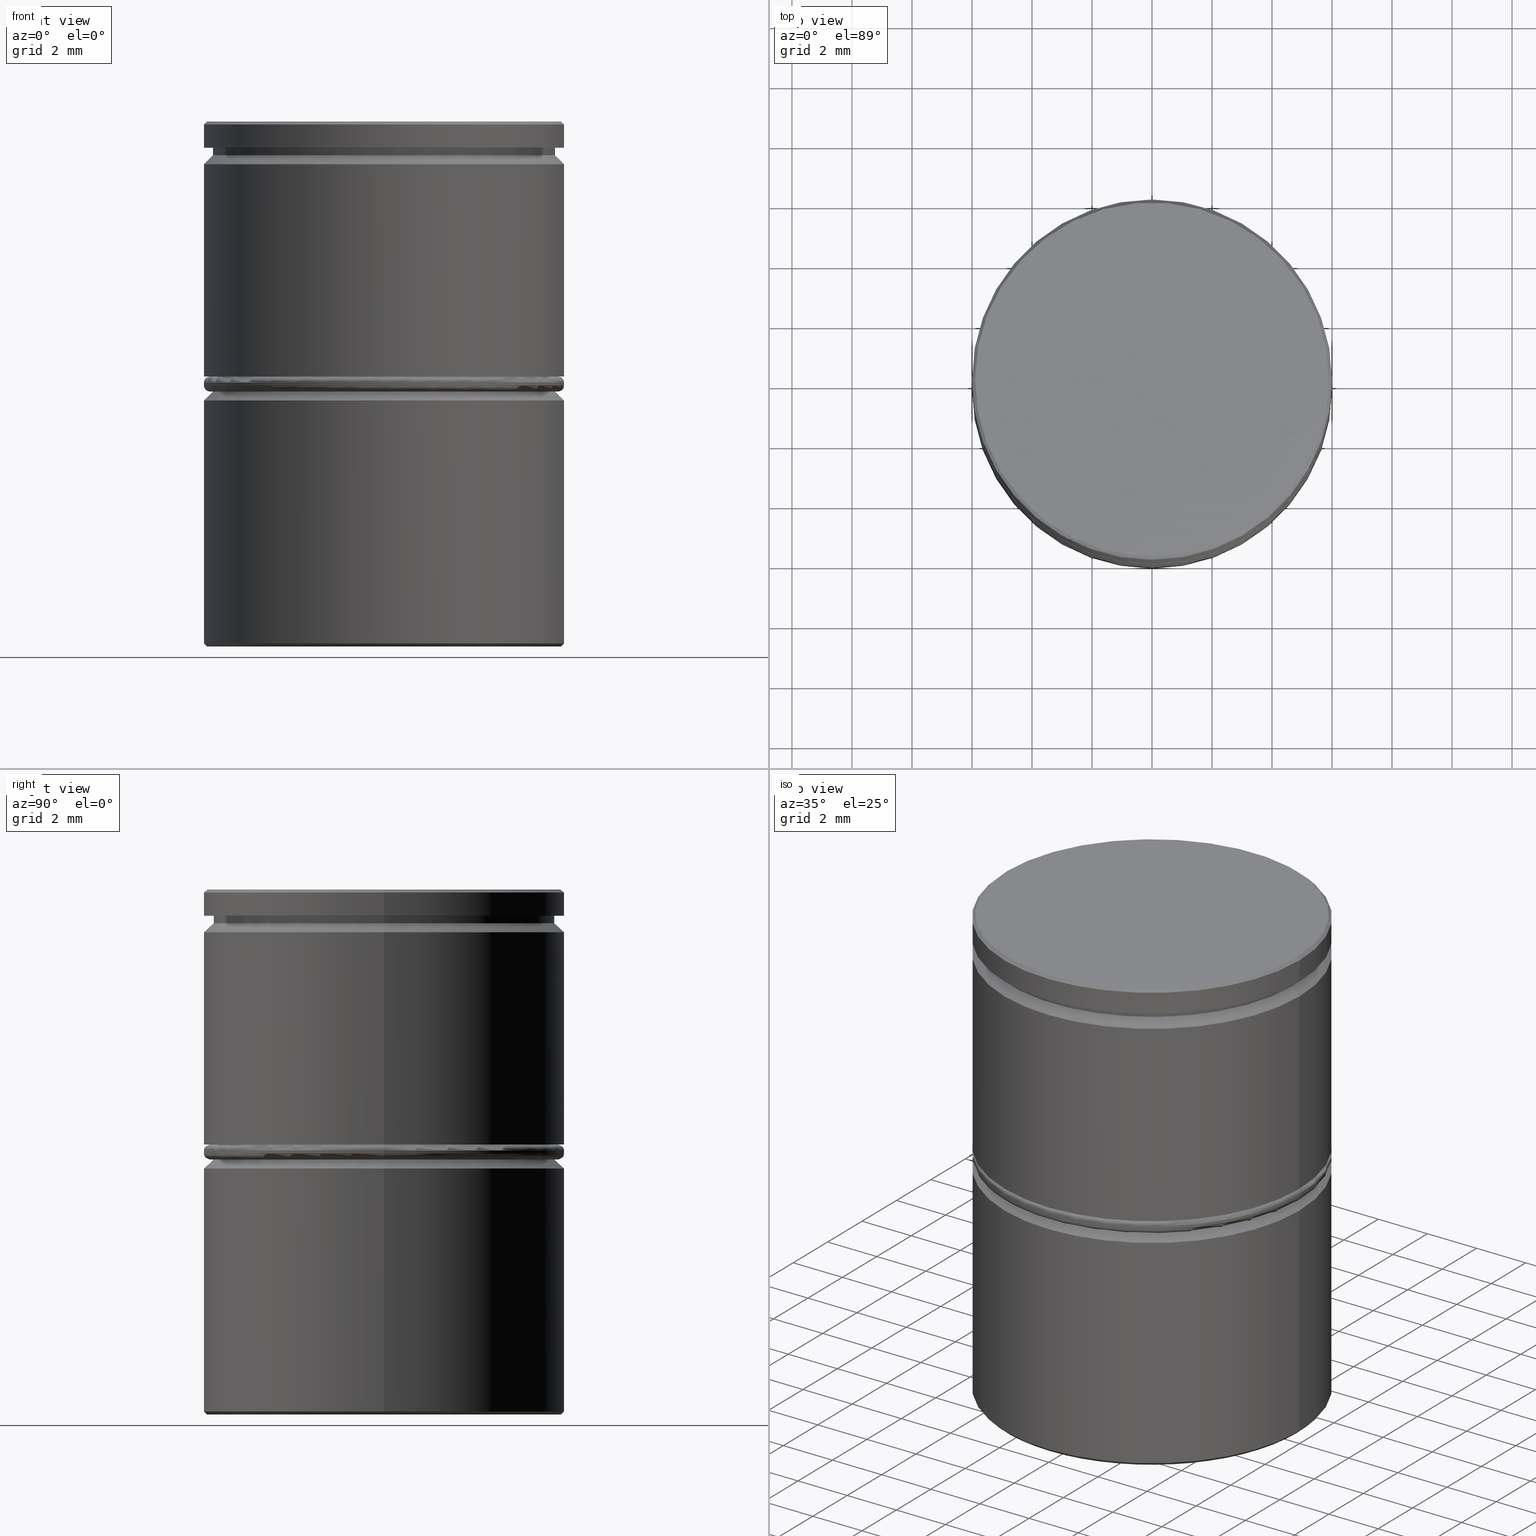
[diagram: canonical four-view strip — front | top / right | iso, engineering-drawing reading convention]
A machine part, canonical four-view strip (front | top / right | iso — engineering-drawing reading convention). The complete STEP part file that produces these views, byte-faithful:
ISO-10303-21;
HEADER;
FILE_DESCRIPTION (( 'STEP AP203' ),
    '1' );
FILE_NAME ('f046.STEP',
    '2023-09-24T11:03:11',
    ( '' ),
    ( '' ),
    'SwSTEP 2.0',
    'SolidWorks 2019',
    '' );
FILE_SCHEMA (( 'CONFIG_CONTROL_DESIGN' ));
ENDSEC;

DATA;
#1 = CONICAL_SURFACE ( 'NONE', #147, 5.900000000000002132, 0.7853981633974439491 ) ;
#2 = CARTESIAN_POINT ( 'NONE',  ( -5.100000000000000533, 2.944486372867091806, -16.50000000000000000 ) ) ;
#3 = CIRCLE ( 'NONE', #520, 5.900000000000002132 ) ;
#4 = VECTOR ( 'NONE', #169, 1000.000000000000114 ) ;
#5 = DIRECTION ( 'NONE',  ( -1.000000000000000000, 0.000000000000000000, 0.000000000000000000 ) ) ;
#6 = ADVANCED_FACE ( 'NONE', ( #648 ), #959, .T. ) ;
#7 = EDGE_CURVE ( 'NONE', #735, #28, #868, .T. ) ;
#8 = EDGE_LOOP ( 'NONE', ( #187, #322, #51, #518 ) ) ;
#9 = CARTESIAN_POINT ( 'NONE',  ( 5.099999999999999645, 2.944486372867090029, -16.50000000000000000 ) ) ;
#10 = CARTESIAN_POINT ( 'NONE',  ( 5.099999999999999645, -2.944486372867090918, -17.50000000000000000 ) ) ;
#11 = ORIENTED_EDGE ( 'NONE', *, *, #7, .F. ) ;
#12 = DIRECTION ( 'NONE',  ( 1.000000000000000000, 0.000000000000000000, 0.000000000000000000 ) ) ;
#13 = CARTESIAN_POINT ( 'NONE',  ( 0.000000000000000000, 0.000000000000000000, -8.500000000000000000 ) ) ;
#14 = ORIENTED_EDGE ( 'NONE', *, *, #855, .F. ) ;
#15 = ADVANCED_FACE ( 'NONE', ( #419 ), #476, .T. ) ;
#16 = EDGE_CURVE ( 'NONE', #311, #134, #345, .T. ) ;
#17 = DIRECTION ( 'NONE',  ( 0.000000000000000000, 0.000000000000000000, -1.000000000000000000 ) ) ;
#18 = CC_DESIGN_PERSON_AND_ORGANIZATION_ASSIGNMENT ( #116, #740, ( #897 ) ) ;
#19 = VECTOR ( 'NONE', #188, 1000.000000000000000 ) ;
#20 = AXIS2_PLACEMENT_3D ( 'NONE', #185, #951, #887 ) ;
#21 = CARTESIAN_POINT ( 'NONE',  ( 5.099999999999999645, -2.944486372867090918, -16.50000000000000000 ) ) ;
#22 = ORGANIZATION ( 'NEUR�EN�', 'NEUR�EN�', '' ) ;
#23 = ORIENTED_EDGE ( 'NONE', *, *, #319, .T. ) ;
#24 = DIRECTION ( 'NONE',  ( 1.224646799147353207E-16, 1.000000000000000000, -0.000000000000000000 ) ) ;
#25 = CARTESIAN_POINT ( 'NONE',  ( 0.000000000000000000, 0.000000000000000000, -17.40000000000000213 ) ) ;
#26 =( NAMED_UNIT ( * ) SI_UNIT ( $, .STERADIAN. ) SOLID_ANGLE_UNIT ( ) );
#27 = CARTESIAN_POINT ( 'NONE',  ( -6.000000000000000888, 7.347880794884120722E-16, -8.800000000000002487 ) ) ;
#28 = VERTEX_POINT ( 'NONE', #267 ) ;
#29 = CARTESIAN_POINT ( 'NONE',  ( 6.000000000000000000, 0.000000000000000000, 0.000000000000000000 ) ) ;
#30 = CARTESIAN_POINT ( 'NONE',  ( 5.700000000000004619, 6.980486755139919025E-16, -1.125000000000000222 ) ) ;
#31 = DIRECTION ( 'NONE',  ( 0.000000000000000000, 0.000000000000000000, 1.000000000000000000 ) ) ;
#32 = EDGE_CURVE ( 'NONE', #562, #410, #590, .T. ) ;
#33 = APPLICATION_PROTOCOL_DEFINITION ( 'international standard', 'config_control_design', 1994, #37 ) ;
#34 = ORIENTED_EDGE ( 'NONE', *, *, #1006, .F. ) ;
#35 = DIRECTION ( 'NONE',  ( 0.000000000000000000, -0.000000000000000000, 1.000000000000000000 ) ) ;
#36 = LINE ( 'NONE', #360, #928 ) ;
#37 = APPLICATION_CONTEXT ( 'configuration controlled 3d designs of mechanical parts and assemblies' ) ;
#38 = CIRCLE ( 'NONE', #944, 5.800000000000001599 ) ;
#39 = CIRCLE ( 'NONE', #425, 0.2000000000000005107 ) ;
#40 = DIRECTION ( 'NONE',  ( -0.000000000000000000, -0.000000000000000000, 1.000000000000000000 ) ) ;
#41 = VERTEX_POINT ( 'NONE', #27 ) ;
#42 = AXIS2_PLACEMENT_3D ( 'NONE', #108, #561, #238 ) ;
#43 = DIRECTION ( 'NONE',  ( 1.000000000000000000, 0.000000000000000000, 0.000000000000000000 ) ) ;
#44 = CYLINDRICAL_SURFACE ( 'NONE', #911, 6.000000000000000888 ) ;
#45 = DIRECTION ( 'NONE',  ( 1.000000000000000000, 0.000000000000000000, 0.000000000000000000 ) ) ;
#46 = EDGE_LOOP ( 'NONE', ( #263, #943, #236, #406 ) ) ;
#47 = ORIENTED_EDGE ( 'NONE', *, *, #664, .T. ) ;
#48 = ORIENTED_EDGE ( 'NONE', *, *, #89, .T. ) ;
#49 = DIRECTION ( 'NONE',  ( -0.5000000000000003331, -0.8660254037844385966, 0.000000000000000000 ) ) ;
#50 = CARTESIAN_POINT ( 'NONE',  ( 6.000000000000000888, 0.000000000000000000, -25.97056274847714263 ) ) ;
#51 = ORIENTED_EDGE ( 'NONE', *, *, #468, .T. ) ;
#52 = EDGE_CURVE ( 'NONE', #829, #806, #582, .T. ) ;
#53 = ADVANCED_FACE ( 'NONE', ( #622, #1018 ), #154, .T. ) ;
#54 = ORIENTED_EDGE ( 'NONE', *, *, #468, .F. ) ;
#55 = DIRECTION ( 'NONE',  ( -0.7071067811865444641, 0.000000000000000000, -0.7071067811865505703 ) ) ;
#56 = PRODUCT_DEFINITION_SHAPE ( 'NONE', 'NONE',  #428 ) ;
#57 = APPROVAL_DATE_TIME ( #523, #608 ) ;
#58 = DIRECTION ( 'NONE',  ( -0.000000000000000000, -0.000000000000000000, -1.000000000000000000 ) ) ;
#59 = CIRCLE ( 'NONE', #359, 5.899999999999999467 ) ;
#60 = VERTEX_POINT ( 'NONE', #547 ) ;
#61 = AXIS2_PLACEMENT_3D ( 'NONE', #748, #280, #438 ) ;
#62 = EDGE_LOOP ( 'NONE', ( #989, #559, #549, #802 ) ) ;
#63 = CONICAL_SURFACE ( 'NONE', #815, 5.900000000000002132, 0.7853981633974439491 ) ;
#64 = DIRECTION ( 'NONE',  ( -0.000000000000000000, -0.000000000000000000, 1.000000000000000000 ) ) ;
#65 = VECTOR ( 'NONE', #40, 1000.000000000000000 ) ;
#66 = CARTESIAN_POINT ( 'NONE',  ( -5.700000000000000178, 6.980486755139913108E-16, -0.8749999999999998890 ) ) ;
#67 = ORIENTED_EDGE ( 'NONE', *, *, #955, .T. ) ;
#68 = CARTESIAN_POINT ( 'NONE',  ( -5.100000000000000533, -2.944486372867089585, -16.50000000000000000 ) ) ;
#69 = CARTESIAN_POINT ( 'NONE',  ( 5.700000000000000178, 0.000000000000000000, 0.000000000000000000 ) ) ;
#70 = EDGE_CURVE ( 'NONE', #1009, #629, #296, .T. ) ;
#71 = EDGE_CURVE ( 'NONE', #332, #645, #477, .T. ) ;
#72 = ORIENTED_EDGE ( 'NONE', *, *, #713, .F. ) ;
#73 = CARTESIAN_POINT ( 'NONE',  ( 6.000000000000000000, 0.000000000000000000, -0.09999999999999852063 ) ) ;
#74 = DIRECTION ( 'NONE',  ( 1.000000000000000000, 0.000000000000000000, 0.000000000000000000 ) ) ;
#75 = DIRECTION ( 'NONE',  ( -0.000000000000000000, -0.000000000000000000, 1.000000000000000000 ) ) ;
#76 = AXIS2_PLACEMENT_3D ( 'NONE', #925, #400, #153 ) ;
#77 = DIRECTION ( 'NONE',  ( -0.7071067811865485719, 0.000000000000000000, -0.7071067811865465735 ) ) ;
#78 = CIRCLE ( 'NONE', #244, 5.899999999999999467 ) ;
#79 = CONICAL_SURFACE ( 'NONE', #341, 6.000000000000000000, 0.7853981633974526089 ) ;
#80 = DIRECTION ( 'NONE',  ( -1.000000000000000000, 0.000000000000000000, -0.000000000000000000 ) ) ;
#81 = LOCAL_TIME ( 13, 3, 11.00000000000000000, #680 ) ;
#82 = CARTESIAN_POINT ( 'NONE',  ( 5.099999999999999645, 2.944486372867090029, -16.50000000000000000 ) ) ;
#83 = EDGE_LOOP ( 'NONE', ( #366, #912 ) ) ;
#84 = EDGE_CURVE ( 'NONE', #94, #942, #118, .T. ) ;
#85 = CYLINDRICAL_SURFACE ( 'NONE', #325, 5.700000000000000178 ) ;
#86 = DIRECTION ( 'NONE',  ( -1.000000000000000000, -1.224646799147353454E-16, 0.000000000000000000 ) ) ;
#87 = ORIENTED_EDGE ( 'NONE', *, *, #374, .T. ) ;
#88 = DIRECTION ( 'NONE',  ( -0.000000000000000000, -0.000000000000000000, -1.000000000000000000 ) ) ;
#89 = EDGE_CURVE ( 'NONE', #994, #640, #742, .T. ) ;
#90 = ADVANCED_FACE ( 'NONE', ( #152 ), #227, .F. ) ;
#91 = ADVANCED_FACE ( 'NONE', ( #756 ), #44, .T. ) ;
#92 = DIRECTION ( 'NONE',  ( 1.000000000000000000, 0.000000000000000000, 0.000000000000000000 ) ) ;
#93 = ORIENTED_EDGE ( 'NONE', *, *, #181, .T. ) ;
#94 = VERTEX_POINT ( 'NONE', #749 ) ;
#95 = VECTOR ( 'NONE', #627, 1000.000000000000000 ) ;
#96 = CYLINDRICAL_SURFACE ( 'NONE', #505, 5.700000000000000178 ) ;
#97 = CIRCLE ( 'NONE', #673, 6.000000000000000888 ) ;
#98 = AXIS2_PLACEMENT_3D ( 'NONE', #746, #31, #195 ) ;
#99 = LINE ( 'NONE', #10, #4 ) ;
#100 = VERTEX_POINT ( 'NONE', #140 ) ;
#101 = VERTEX_POINT ( 'NONE', #593 ) ;
#102 = FACE_OUTER_BOUND ( 'NONE', #143, .T. ) ;
#103 = FACE_OUTER_BOUND ( 'NONE', #230, .T. ) ;
#104 = ADVANCED_FACE ( 'NONE', ( #903 ), #1004, .F. ) ;
#105 = EDGE_CURVE ( 'NONE', #60, #960, #767, .T. ) ;
#106 = ORIENTED_EDGE ( 'NONE', *, *, #167, .F. ) ;
#107 = FACE_OUTER_BOUND ( 'NONE', #525, .T. ) ;
#108 = CARTESIAN_POINT ( 'NONE',  ( 0.000000000000000000, 0.000000000000000000, -8.500000000000000000 ) ) ;
#109 = DIRECTION ( 'NONE',  ( 1.000000000000000000, 0.000000000000000000, 0.000000000000000000 ) ) ;
#110 = VERTEX_POINT ( 'NONE', #835 ) ;
#111 = CARTESIAN_POINT ( 'NONE',  ( 0.000000000000000000, 0.000000000000000000, -0.09999999999999852063 ) ) ;
#112 = VECTOR ( 'NONE', #929, 1000.000000000000000 ) ;
#113 = VECTOR ( 'NONE', #146, 1000.000000000000000 ) ;
#114 = DIRECTION ( 'NONE',  ( -1.000000000000000000, 0.000000000000000000, 0.000000000000000000 ) ) ;
#115 = APPROVAL_PERSON_ORGANIZATION ( #524, #386, #978 ) ;
#116 = PERSON_AND_ORGANIZATION ( #251, #22 ) ;
#117 = EDGE_LOOP ( 'NONE', ( #207, #655, #532, #397 ) ) ;
#118 = LINE ( 'NONE', #430, #999 ) ;
#119 = AXIS2_PLACEMENT_3D ( 'NONE', #677, #968, #109 ) ;
#120 = CARTESIAN_POINT ( 'NONE',  ( -5.700000000000000178, 6.980486755139913108E-16, -1.125000000000000222 ) ) ;
#121 = CARTESIAN_POINT ( 'NONE',  ( 6.000000000000000000, 0.000000000000000000, -8.500000000000000000 ) ) ;
#122 = DIRECTION ( 'NONE',  ( -0.000000000000000000, -0.000000000000000000, 1.000000000000000000 ) ) ;
#123 = ORIENTED_EDGE ( 'NONE', *, *, #239, .F. ) ;
#124 = FACE_OUTER_BOUND ( 'NONE', #1010, .T. ) ;
#125 = DIRECTION ( 'NONE',  ( 1.000000000000000000, 0.000000000000000000, 0.000000000000000000 ) ) ;
#126 = ADVANCED_FACE ( 'NONE', ( #679 ), #287, .F. ) ;
#127 = CC_DESIGN_PERSON_AND_ORGANIZATION_ASSIGNMENT ( #288, #598, ( #558 ) ) ;
#128 = ORIENTED_EDGE ( 'NONE', *, *, #1006, .T. ) ;
#129 = CYLINDRICAL_SURFACE ( 'NONE', #161, 6.000000000000000000 ) ;
#130 = DIRECTION ( 'NONE',  ( -0.000000000000000000, -0.000000000000000000, 1.000000000000000000 ) ) ;
#131 = AXIS2_PLACEMENT_3D ( 'NONE', #222, #1026, #394 ) ;
#132 = ORIENTED_EDGE ( 'NONE', *, *, #349, .T. ) ;
#133 = AXIS2_PLACEMENT_3D ( 'NONE', #867, #335, #941 ) ;
#134 = VERTEX_POINT ( 'NONE', #899 ) ;
#135 = FACE_OUTER_BOUND ( 'NONE', #456, .T. ) ;
#136 = PERSON_AND_ORGANIZATION_ROLE ( 'design_supplier' ) ;
#137 = ORIENTED_EDGE ( 'NONE', *, *, #272, .T. ) ;
#138 = EDGE_CURVE ( 'NONE', #735, #645, #36, .T. ) ;
#139 = VERTEX_POINT ( 'NONE', #364 ) ;
#140 = CARTESIAN_POINT ( 'NONE',  ( 5.700000000000000178, 0.000000000000000000, -1.125000000000000222 ) ) ;
#141 = CARTESIAN_POINT ( 'NONE',  ( 0.000000000000000000, 0.000000000000000000, -9.000000000000001776 ) ) ;
#142 = ORIENTED_EDGE ( 'NONE', *, *, #32, .F. ) ;
#143 = EDGE_LOOP ( 'NONE', ( #543, #840, #123, #411 ) ) ;
#144 = DIRECTION ( 'NONE',  ( 1.000000000000000000, 0.000000000000000000, 0.000000000000000000 ) ) ;
#145 = CALENDAR_DATE ( 2023, 24, 9 ) ;
#146 = DIRECTION ( 'NONE',  ( -0.7071067811865434649, 0.000000000000000000, -0.7071067811865516806 ) ) ;
#147 = AXIS2_PLACEMENT_3D ( 'NONE', #817, #172, #334 ) ;
#148 = CIRCLE ( 'NONE', #772, 5.800000000000001599 ) ;
#149 = CARTESIAN_POINT ( 'NONE',  ( 0.000000000000000000, 0.000000000000000000, 0.000000000000000000 ) ) ;
#150 = EDGE_CURVE ( 'NONE', #886, #219, #447, .T. ) ;
#151 = DIRECTION ( 'NONE',  ( -0.000000000000000000, -0.000000000000000000, 1.000000000000000000 ) ) ;
#152 = FACE_OUTER_BOUND ( 'NONE', #46, .T. ) ;
#153 = DIRECTION ( 'NONE',  ( -1.000000000000000000, 0.000000000000000000, 0.000000000000000000 ) ) ;
#154 = PLANE ( 'NONE',  #738 ) ;
#155 = DIRECTION ( 'NONE',  ( -0.000000000000000000, -0.000000000000000000, 1.000000000000000000 ) ) ;
#156 = ADVANCED_FACE ( 'NONE', ( #832 ), #209, .T. ) ;
#157 = FACE_BOUND ( 'NONE', #773, .T. ) ;
#158 = CARTESIAN_POINT ( 'NONE',  ( 6.000000000000000000, 0.000000000000000000, -1.424999999999999156 ) ) ;
#159 = CIRCLE ( 'NONE', #1022, 5.700000000000000178 ) ;
#160 = ORIENTED_EDGE ( 'NONE', *, *, #575, .T. ) ;
#161 = AXIS2_PLACEMENT_3D ( 'NONE', #592, #586, #434 ) ;
#162 = DIRECTION ( 'NONE',  ( 1.000000000000000000, 0.000000000000000000, 0.000000000000000000 ) ) ;
#163 = DIRECTION ( 'NONE',  ( 1.000000000000000000, 0.000000000000000000, 0.000000000000000000 ) ) ;
#164 = VECTOR ( 'NONE', #356, 1000.000000000000114 ) ;
#165 = ORIENTED_EDGE ( 'NONE', *, *, #791, .T. ) ;
#166 = EDGE_CURVE ( 'NONE', #640, #410, #811, .T. ) ;
#167 = EDGE_CURVE ( 'NONE', #305, #566, #597, .T. ) ;
#168 = DIRECTION ( 'NONE',  ( -1.000000000000000000, 0.000000000000000000, 0.000000000000000000 ) ) ;
#169 = DIRECTION ( 'NONE',  ( -0.8660254037844387076, -0.4999999999999998890, 0.000000000000000000 ) ) ;
#170 = ORIENTED_EDGE ( 'NONE', *, *, #889, .F. ) ;
#171 = EDGE_LOOP ( 'NONE', ( #453, #72, #595, #367 ) ) ;
#172 = DIRECTION ( 'NONE',  ( 0.000000000000000000, 0.000000000000000000, -1.000000000000000000 ) ) ;
#173 = DIRECTION ( 'NONE',  ( 1.000000000000000000, 0.000000000000000000, 0.000000000000000000 ) ) ;
#174 = ORIENTED_EDGE ( 'NONE', *, *, #670, .F. ) ;
#175 = VERTEX_POINT ( 'NONE', #521 ) ;
#176 = AXIS2_PLACEMENT_3D ( 'NONE', #616, #853, #80 ) ;
#177 = DIRECTION ( 'NONE',  ( -0.000000000000000000, -0.000000000000000000, 1.000000000000000000 ) ) ;
#178 = CIRCLE ( 'NONE', #522, 5.900000000000002132 ) ;
#179 = EDGE_CURVE ( 'NONE', #410, #640, #439, .T. ) ;
#180 = VECTOR ( 'NONE', #647, 1000.000000000000000 ) ;
#181 = EDGE_CURVE ( 'NONE', #454, #100, #470, .T. ) ;
#182 = ADVANCED_FACE ( 'NONE', ( #435 ), #340, .T. ) ;
#183 = DIRECTION ( 'NONE',  ( 0.000000000000000000, 0.000000000000000000, 1.000000000000000000 ) ) ;
#184 = VERTEX_POINT ( 'NONE', #281 ) ;
#185 = CARTESIAN_POINT ( 'NONE',  ( 5.099999999999999645, -2.944486372867090918, -16.50000000000000000 ) ) ;
#186 = LINE ( 'NONE', #796, #229 ) ;
#187 = ORIENTED_EDGE ( 'NONE', *, *, #530, .F. ) ;
#188 = DIRECTION ( 'NONE',  ( -0.000000000000000000, -0.000000000000000000, 1.000000000000000000 ) ) ;
#189 = DIRECTION ( 'NONE',  ( 0.000000000000000000, -1.000000000000000000, 0.000000000000000000 ) ) ;
#190 = LINE ( 'NONE', #900, #967 ) ;
#191 = CARTESIAN_POINT ( 'NONE',  ( 0.000000000000000000, 0.000000000000000000, 0.000000000000000000 ) ) ;
#192 = CARTESIAN_POINT ( 'NONE',  ( 5.099999999999999645, -2.944486372867090918, -17.50000000000000000 ) ) ;
#193 = AXIS2_PLACEMENT_3D ( 'NONE', #512, #822, #144 ) ;
#194 = AXIS2_PLACEMENT_3D ( 'NONE', #1014, #303, #541 ) ;
#195 = DIRECTION ( 'NONE',  ( 1.000000000000000000, 0.000000000000000000, 0.000000000000000000 ) ) ;
#196 = LINE ( 'NONE', #50, #775 ) ;
#197 = CARTESIAN_POINT ( 'NONE',  ( -8.646952822150503169E-16, -5.888972745734181835, -16.50000000000000000 ) ) ;
#198 = ORIENTED_EDGE ( 'NONE', *, *, #778, .T. ) ;
#199 = EDGE_CURVE ( 'NONE', #645, #332, #292, .T. ) ;
#200 = DIRECTION ( 'NONE',  ( -0.000000000000000000, -0.000000000000000000, 1.000000000000000000 ) ) ;
#201 = CARTESIAN_POINT ( 'NONE',  ( -5.900000000000002132, 0.000000000000000000, 0.000000000000000000 ) ) ;
#202 = DIRECTION ( 'NONE',  ( 0.000000000000000000, -1.000000000000000000, 0.000000000000000000 ) ) ;
#203 = VERTEX_POINT ( 'NONE', #908 ) ;
#204 = PLANE ( 'NONE',  #601 ) ;
#205 = DIRECTION ( 'NONE',  ( -0.000000000000000000, -0.000000000000000000, 1.000000000000000000 ) ) ;
#206 = DATE_AND_TIME ( #904, #329 ) ;
#207 = ORIENTED_EDGE ( 'NONE', *, *, #922, .T. ) ;
#208 = CARTESIAN_POINT ( 'NONE',  ( -6.000000000000000000, 7.347880794884119736E-16, -0.09999999999999852063 ) ) ;
#209 = CYLINDRICAL_SURFACE ( 'NONE', #845, 6.000000000000000000 ) ;
#210 = ADVANCED_FACE ( 'NONE', ( #135 ), #685, .T. ) ;
#211 = EDGE_CURVE ( 'NONE', #134, #28, #217, .T. ) ;
#212 = DATE_AND_TIME ( #833, #81 ) ;
#213 = CIRCLE ( 'NONE', #42, 6.000000000000000000 ) ;
#214 = ORIENTED_EDGE ( 'NONE', *, *, #839, .T. ) ;
#215 = AXIS2_PLACEMENT_3D ( 'NONE', #872, #800, #163 ) ;
#216 = ORIENTED_EDGE ( 'NONE', *, *, #936, .T. ) ;
#217 = LINE ( 'NONE', #527, #554 ) ;
#218 = CARTESIAN_POINT ( 'NONE',  ( -5.100000000000000533, 2.944486372867091806, -16.50000000000000000 ) ) ;
#219 = VERTEX_POINT ( 'NONE', #73 ) ;
#220 = DESIGN_CONTEXT ( 'detailed design', #485, 'design' ) ;
#221 = CARTESIAN_POINT ( 'NONE',  ( 0.000000000000000000, 0.000000000000000000, -8.500000000000000000 ) ) ;
#222 = CARTESIAN_POINT ( 'NONE',  ( 0.000000000000000000, 6.000000000000000000, -0.8749999999999998890 ) ) ;
#223 = ORIENTED_EDGE ( 'NONE', *, *, #546, .T. ) ;
#224 = DIRECTION ( 'NONE',  ( 0.000000000000000000, 0.000000000000000000, 1.000000000000000000 ) ) ;
#225 = APPROVAL_ROLE ( '' ) ;
#226 = FACE_OUTER_BOUND ( 'NONE', #321, .T. ) ;
#227 = PLANE ( 'NONE',  #490 ) ;
#228 = AXIS2_PLACEMENT_3D ( 'NONE', #302, #841, #125 ) ;
#229 = VECTOR ( 'NONE', #331, 1000.000000000000000 ) ;
#230 = EDGE_LOOP ( 'NONE', ( #474, #23, #279, #984 ) ) ;
#231 = AXIS2_PLACEMENT_3D ( 'NONE', #271, #810, #114 ) ;
#232 = DIRECTION ( 'NONE',  ( -0.000000000000000000, -0.000000000000000000, 1.000000000000000000 ) ) ;
#233 = CARTESIAN_POINT ( 'NONE',  ( 0.000000000000000000, 0.000000000000000000, -8.699999999999999289 ) ) ;
#234 = LINE ( 'NONE', #859, #112 ) ;
#235 = DIRECTION ( 'NONE',  ( -0.000000000000000000, -0.000000000000000000, 1.000000000000000000 ) ) ;
#236 = ORIENTED_EDGE ( 'NONE', *, *, #374, .F. ) ;
#237 = CARTESIAN_POINT ( 'NONE',  ( -5.899999999999999467, 7.286648454926751965E-16, -17.50000000000000000 ) ) ;
#238 = DIRECTION ( 'NONE',  ( 1.000000000000000000, 0.000000000000000000, 0.000000000000000000 ) ) ;
#239 = EDGE_CURVE ( 'NONE', #834, #687, #159, .T. ) ;
#240 = EDGE_CURVE ( 'NONE', #716, #993, #38, .T. ) ;
#241 = AXIS2_PLACEMENT_3D ( 'NONE', #388, #865, #621 ) ;
#242 = EDGE_LOOP ( 'NONE', ( #533, #247, #368, #611 ) ) ;
#243 = ORIENTED_EDGE ( 'NONE', *, *, #935, .T. ) ;
#244 = AXIS2_PLACEMENT_3D ( 'NONE', #417, #495, #804 ) ;
#245 = DIRECTION ( 'NONE',  ( 1.000000000000000000, 0.000000000000000000, 0.000000000000000000 ) ) ;
#246 = CARTESIAN_POINT ( 'NONE',  ( 0.000000000000000000, 0.000000000000000000, -0.09999999999999852063 ) ) ;
#247 = ORIENTED_EDGE ( 'NONE', *, *, #902, .T. ) ;
#248 = ORIENTED_EDGE ( 'NONE', *, *, #286, .F. ) ;
#249 = LINE ( 'NONE', #9, #966 ) ;
#250 = DIRECTION ( 'NONE',  ( 0.000000000000000000, 0.000000000000000000, -1.000000000000000000 ) ) ;
#251 = PERSON ( 'NEUR�EN�', 'NEUR�EN�', 'NEUR�EN�', ('NEUR�EN�'), ('NEUR�EN�'), ('NEUR�EN�') ) ;
#252 = ORIENTED_EDGE ( 'NONE', *, *, #240, .T. ) ;
#253 = EDGE_CURVE ( 'NONE', #139, #433, #234, .T. ) ;
#254 = LINE ( 'NONE', #426, #946 ) ;
#255 = LINE ( 'NONE', #631, #830 ) ;
#256 = CARTESIAN_POINT ( 'NONE',  ( 0.000000000000000000, 0.000000000000000000, 0.000000000000000000 ) ) ;
#257 = CIRCLE ( 'NONE', #241, 6.000000000000000888 ) ;
#258 = CARTESIAN_POINT ( 'NONE',  ( 5.800000000000001599, 0.000000000000000000, -8.800000000000002487 ) ) ;
#259 = AXIS2_PLACEMENT_3D ( 'NONE', #1033, #489, #92 ) ;
#260 = CIRCLE ( 'NONE', #736, 6.000000000000000000 ) ;
#261 = CC_DESIGN_PERSON_AND_ORGANIZATION_ASSIGNMENT ( #910, #136, ( #558 ) ) ;
#262 = CARTESIAN_POINT ( 'NONE',  ( 0.000000000000000000, 0.000000000000000000, -9.299999999999991829 ) ) ;
#263 = ORIENTED_EDGE ( 'NONE', *, *, #105, .T. ) ;
#264 = ADVANCED_BREP_SHAPE_REPRESENTATION ( 'f046', ( #269, #972, #1025 ), #413 ) ;
#265 = FACE_OUTER_BOUND ( 'NONE', #117, .T. ) ;
#266 = CARTESIAN_POINT ( 'NONE',  ( 5.099999999999999645, 2.944486372867090029, -17.50000000000000000 ) ) ;
#267 = CARTESIAN_POINT ( 'NONE',  ( -6.000000000000000000, 7.347880794884119736E-16, -9.299999999999991829 ) ) ;
#268 = EDGE_LOOP ( 'NONE', ( #316, #579, #47, #731 ) ) ;
#269 = MANIFOLD_SOLID_BREP ( 'Odebrat vysunut�m1', #314 ) ;
#270 = DIRECTION ( 'NONE',  ( 0.000000000000000000, 0.000000000000000000, -1.000000000000000000 ) ) ;
#271 = CARTESIAN_POINT ( 'NONE',  ( 0.000000000000000000, 0.000000000000000000, -1.125000000000000222 ) ) ;
#272 = EDGE_CURVE ( 'NONE', #806, #691, #550, .T. ) ;
#273 = DATE_AND_TIME ( #448, #542 ) ;
#274 = ADVANCED_FACE ( 'NONE', ( #469 ), #306, .T. ) ;
#275 = FACE_OUTER_BOUND ( 'NONE', #327, .T. ) ;
#276 = AXIS2_PLACEMENT_3D ( 'NONE', #451, #49, #991 ) ;
#277 = LINE ( 'NONE', #266, #850 ) ;
#278 = PERSON_AND_ORGANIZATION ( #251, #22 ) ;
#279 = ORIENTED_EDGE ( 'NONE', *, *, #84, .T. ) ;
#280 = DIRECTION ( 'NONE',  ( -0.000000000000000000, -0.000000000000000000, 1.000000000000000000 ) ) ;
#281 = CARTESIAN_POINT ( 'NONE',  ( 6.000000000000000888, 0.000000000000000000, -8.699999999999999289 ) ) ;
#282 = COORDINATED_UNIVERSAL_TIME_OFFSET ( 1, 0, .AHEAD. ) ;
#283 = ORIENTED_EDGE ( 'NONE', *, *, #530, .T. ) ;
#284 = CARTESIAN_POINT ( 'NONE',  ( -5.100000000000000533, 2.944486372867091806, -17.50000000000000000 ) ) ;
#285 = EDGE_CURVE ( 'NONE', #691, #563, #1032, .T. ) ;
#286 = EDGE_CURVE ( 'NONE', #537, #735, #395, .T. ) ;
#287 = PLANE ( 'NONE',  #799 ) ;
#288 = PERSON_AND_ORGANIZATION ( #251, #22 ) ;
#289 = ORIENTED_EDGE ( 'NONE', *, *, #828, .F. ) ;
#290 = ORIENTED_EDGE ( 'NONE', *, *, #828, .T. ) ;
#291 = DIRECTION ( 'NONE',  ( -0.000000000000000000, -0.000000000000000000, 1.000000000000000000 ) ) ;
#292 = CIRCLE ( 'NONE', #570, 5.700000000000000178 ) ;
#293 = VECTOR ( 'NONE', #701, 1000.000000000000000 ) ;
#294 = LINE ( 'NONE', #69, #412 ) ;
#295 = CONICAL_SURFACE ( 'NONE', #915, 6.000000000000000000, 0.7853981633974526089 ) ;
#296 = CIRCLE ( 'NONE', #643, 6.000000000000000000 ) ;
#297 = EDGE_LOOP ( 'NONE', ( #243, #641, #198, #1015 ) ) ;
#298 = DIRECTION ( 'NONE',  ( -1.000000000000000000, 0.000000000000000000, -0.000000000000000000 ) ) ;
#299 = COORDINATED_UNIVERSAL_TIME_OFFSET ( 1, 0, .AHEAD. ) ;
#300 = CARTESIAN_POINT ( 'NONE',  ( -5.700000000000000178, 6.980486755139913108E-16, -8.500000000000000000 ) ) ;
#301 = EDGE_LOOP ( 'NONE', ( #223, #87, #633, #722, #339, #137 ) ) ;
#302 = CARTESIAN_POINT ( 'NONE',  ( 0.000000000000000000, 0.000000000000000000, -1.424999999999999156 ) ) ;
#303 = DIRECTION ( 'NONE',  ( -0.4999999999999995004, 0.8660254037844389297, 0.000000000000000000 ) ) ;
#304 = EDGE_CURVE ( 'NONE', #41, #110, #257, .T. ) ;
#305 = VERTEX_POINT ( 'NONE', #545 ) ;
#306 = CYLINDRICAL_SURFACE ( 'NONE', #504, 6.000000000000000888 ) ;
#307 = DIRECTION ( 'NONE',  ( -1.000000000000000000, 0.000000000000000000, -0.000000000000000000 ) ) ;
#308 = DIRECTION ( 'NONE',  ( -0.000000000000000000, -1.000000000000000000, -0.000000000000000000 ) ) ;
#309 = AXIS2_PLACEMENT_3D ( 'NONE', #392, #538, #162 ) ;
#310 = VECTOR ( 'NONE', #471, 1000.000000000000000 ) ;
#311 = VERTEX_POINT ( 'NONE', #237 ) ;
#312 = CIRCLE ( 'NONE', #361, 6.000000000000000888 ) ;
#313 = DIRECTION ( 'NONE',  ( 1.000000000000000000, 0.000000000000000000, -0.000000000000000000 ) ) ;
#314 = CLOSED_SHELL ( 'NONE', ( #436, #557, #970, #408, #156, #637, #383, #531, #606, #53, #620, #6, #751, #790, #210, #318, #399, #861, #827, #619, #182, #963, #760, #488, #104, #467, #544, #90, #744 ) ) ;
#315 = CARTESIAN_POINT ( 'NONE',  ( -5.100000000000000533, 2.944486372867091806, -17.50000000000000000 ) ) ;
#316 = ORIENTED_EDGE ( 'NONE', *, *, #16, .F. ) ;
#317 = DIRECTION ( 'NONE',  ( -0.000000000000000000, -0.000000000000000000, 1.000000000000000000 ) ) ;
#318 = ADVANCED_FACE ( 'NONE', ( #157, #786 ), #323, .T. ) ;
#319 = EDGE_CURVE ( 'NONE', #134, #94, #635, .T. ) ;
#320 = DIRECTION ( 'NONE',  ( -1.000000000000000000, 0.000000000000000000, 0.000000000000000000 ) ) ;
#321 = EDGE_LOOP ( 'NONE', ( #695, #479, #797, #954 ) ) ;
#322 = ORIENTED_EDGE ( 'NONE', *, *, #651, .F. ) ;
#323 = PLANE ( 'NONE',  #176 ) ;
#324 = DIRECTION ( 'NONE',  ( -1.000000000000000000, 0.000000000000000000, 0.000000000000000000 ) ) ;
#325 = AXIS2_PLACEMENT_3D ( 'NONE', #149, #177, #577 ) ;
#326 = ORIENTED_EDGE ( 'NONE', *, *, #70, .T. ) ;
#327 = EDGE_LOOP ( 'NONE', ( #326, #953, #838, #649 ) ) ;
#328 = CIRCLE ( 'NONE', #540, 6.000000000000000888 ) ;
#329 = LOCAL_TIME ( 13, 3, 11.00000000000000000, #594 ) ;
#330 = DIRECTION ( 'NONE',  ( 0.000000000000000000, 0.000000000000000000, -1.000000000000000000 ) ) ;
#331 = DIRECTION ( 'NONE',  ( -0.000000000000000000, -0.000000000000000000, 1.000000000000000000 ) ) ;
#332 = VERTEX_POINT ( 'NONE', #465 ) ;
#333 = ORIENTED_EDGE ( 'NONE', *, *, #816, .F. ) ;
#334 = DIRECTION ( 'NONE',  ( -1.000000000000000000, 0.000000000000000000, 0.000000000000000000 ) ) ;
#335 = DIRECTION ( 'NONE',  ( -0.000000000000000000, -0.000000000000000000, 1.000000000000000000 ) ) ;
#336 = VERTEX_POINT ( 'NONE', #711 ) ;
#337 = CARTESIAN_POINT ( 'NONE',  ( 5.700000000000000178, 0.000000000000000000, -9.000000000000001776 ) ) ;
#338 = FACE_OUTER_BOUND ( 'NONE', #171, .T. ) ;
#339 = ORIENTED_EDGE ( 'NONE', *, *, #52, .T. ) ;
#340 = CONICAL_SURFACE ( 'NONE', #623, 5.700000000000008171, 0.7853981633974497223 ) ;
#341 = AXIS2_PLACEMENT_3D ( 'NONE', #754, #358, #43 ) ;
#342 = CARTESIAN_POINT ( 'NONE',  ( -5.100000000000000533, 2.944486372867091806, -16.50000000000000000 ) ) ;
#343 = AXIS2_PLACEMENT_3D ( 'NONE', #246, #409, #404 ) ;
#344 = DIRECTION ( 'NONE',  ( -0.000000000000000000, -0.000000000000000000, -1.000000000000000000 ) ) ;
#345 = LINE ( 'NONE', #905, #870 ) ;
#346 = DIRECTION ( 'NONE',  ( -0.000000000000000000, -0.000000000000000000, 1.000000000000000000 ) ) ;
#347 = FACE_OUTER_BOUND ( 'NONE', #814, .T. ) ;
#348 = EDGE_CURVE ( 'NONE', #311, #203, #59, .T. ) ;
#349 = EDGE_CURVE ( 'NONE', #94, #134, #962, .T. ) ;
#350 = LINE ( 'NONE', #21, #706 ) ;
#351 = MECHANICAL_CONTEXT ( 'NONE', #37, 'mechanical' ) ;
#352 = ORIENTED_EDGE ( 'NONE', *, *, #846, .F. ) ;
#353 = CARTESIAN_POINT ( 'NONE',  ( -6.000000000000000000, 7.347880794884119736E-16, -8.500000000000000000 ) ) ;
#354 = DIRECTION ( 'NONE',  ( -0.8660254037844387076, -0.4999999999999998890, 0.000000000000000000 ) ) ;
#355 = DIRECTION ( 'NONE',  ( 0.000000000000000000, 0.000000000000000000, -1.000000000000000000 ) ) ;
#356 = DIRECTION ( 'NONE',  ( -0.8660254037844384856, 0.5000000000000002220, 0.000000000000000000 ) ) ;
#357 = EDGE_LOOP ( 'NONE', ( #402, #728, #352, #106 ) ) ;
#358 = DIRECTION ( 'NONE',  ( -0.000000000000000000, -0.000000000000000000, 1.000000000000000000 ) ) ;
#359 = AXIS2_PLACEMENT_3D ( 'NONE', #1024, #717, #699 ) ;
#360 = CARTESIAN_POINT ( 'NONE',  ( -5.700000000000000178, 6.980486755139913108E-16, 0.000000000000000000 ) ) ;
#361 = AXIS2_PLACEMENT_3D ( 'NONE', #880, #183, #496 ) ;
#362 = ADVANCED_FACE ( 'NONE', ( #708 ), #1029, .F. ) ;
#363 = DIRECTION ( 'NONE',  ( -0.000000000000000000, -0.000000000000000000, -1.000000000000000000 ) ) ;
#364 = CARTESIAN_POINT ( 'NONE',  ( 5.099999999999999645, -2.944486372867090918, -16.50000000000000000 ) ) ;
#365 = PERSON_AND_ORGANIZATION_ROLE ( 'creator' ) ;
#366 = ORIENTED_EDGE ( 'NONE', *, *, #500, .T. ) ;
#367 = ORIENTED_EDGE ( 'NONE', *, *, #455, .F. ) ;
#368 = ORIENTED_EDGE ( 'NONE', *, *, #1005, .T. ) ;
#369 = CARTESIAN_POINT ( 'NONE',  ( 0.000000000000000000, 0.000000000000000000, -8.500000000000000000 ) ) ;
#370 = PERSON_AND_ORGANIZATION_ROLE ( 'design_owner' ) ;
#371 = ORIENTED_EDGE ( 'NONE', *, *, #839, .F. ) ;
#372 = ORIENTED_EDGE ( 'NONE', *, *, #211, .T. ) ;
#373 = ORIENTED_EDGE ( 'NONE', *, *, #923, .F. ) ;
#374 = EDGE_CURVE ( 'NONE', #391, #101, #1017, .T. ) ;
#375 = DIRECTION ( 'NONE',  ( 1.000000000000000000, 0.000000000000000000, 0.000000000000000000 ) ) ;
#376 = VECTOR ( 'NONE', #58, 1000.000000000000000 ) ;
#377 = DIRECTION ( 'NONE',  ( -1.000000000000000000, 0.000000000000000000, -0.000000000000000000 ) ) ;
#378 = CIRCLE ( 'NONE', #657, 5.800000000000001599 ) ;
#379 = EDGE_LOOP ( 'NONE', ( #609, #450, #974, #747 ) ) ;
#380 = EDGE_LOOP ( 'NONE', ( #688, #858 ) ) ;
#381 = ORIENTED_EDGE ( 'NONE', *, *, #71, .T. ) ;
#382 = DIRECTION ( 'NONE',  ( 0.7071067811865444641, 8.659560562354897113E-17, -0.7071067811865505703 ) ) ;
#383 = ADVANCED_FACE ( 'NONE', ( #630 ), #871, .T. ) ;
#384 = PERSON_AND_ORGANIZATION ( #251, #22 ) ;
#385 = PLANE ( 'NONE',  #556 ) ;
#386 = APPROVAL ( #992, 'NEUR�EN�' ) ;
#387 = ORIENTED_EDGE ( 'NONE', *, *, #848, .T. ) ;
#388 = CARTESIAN_POINT ( 'NONE',  ( 0.000000000000000000, 0.000000000000000000, -8.800000000000002487 ) ) ;
#389 = LINE ( 'NONE', #932, #113 ) ;
#390 = DIRECTION ( 'NONE',  ( 0.4999999999999998335, 0.8660254037844387076, -0.000000000000000000 ) ) ;
#391 = VERTEX_POINT ( 'NONE', #475 ) ;
#392 = CARTESIAN_POINT ( 'NONE',  ( 0.000000000000000000, 0.000000000000000000, 0.000000000000000000 ) ) ;
#393 = DIRECTION ( 'NONE',  ( 0.000000000000000000, 0.000000000000000000, -1.000000000000000000 ) ) ;
#394 = DIRECTION ( 'NONE',  ( -1.000000000000000000, 0.000000000000000000, -0.000000000000000000 ) ) ;
#395 = CIRCLE ( 'NONE', #519, 5.700000000000000178 ) ;
#396 = CIRCLE ( 'NONE', #787, 0.2000000000000005107 ) ;
#397 = ORIENTED_EDGE ( 'NONE', *, *, #253, .T. ) ;
#398 = CONICAL_SURFACE ( 'NONE', #231, 5.700000000000004619, 0.7853981633974425058 ) ;
#399 = ADVANCED_FACE ( 'NONE', ( #792 ), #85, .T. ) ;
#400 = DIRECTION ( 'NONE',  ( -0.000000000000000000, -0.000000000000000000, 1.000000000000000000 ) ) ;
#401 = CARTESIAN_POINT ( 'NONE',  ( 0.000000000000000000, 0.000000000000000000, -9.000000000000001776 ) ) ;
#402 = ORIENTED_EDGE ( 'NONE', *, *, #575, .F. ) ;
#403 = CARTESIAN_POINT ( 'NONE',  ( 0.000000000000000000, 0.000000000000000000, -9.000000000000001776 ) ) ;
#404 = DIRECTION ( 'NONE',  ( 1.000000000000000000, 0.000000000000000000, 0.000000000000000000 ) ) ;
#405 = ORIENTED_EDGE ( 'NONE', *, *, #32, .T. ) ;
#406 = ORIENTED_EDGE ( 'NONE', *, *, #712, .T. ) ;
#407 = DIRECTION ( 'NONE',  ( -0.000000000000000000, -0.000000000000000000, 1.000000000000000000 ) ) ;
#408 = ADVANCED_FACE ( 'NONE', ( #652 ), #1, .T. ) ;
#409 = DIRECTION ( 'NONE',  ( 0.000000000000000000, 0.000000000000000000, -1.000000000000000000 ) ) ;
#410 = VERTEX_POINT ( 'NONE', #743 ) ;
#411 = ORIENTED_EDGE ( 'NONE', *, *, #997, .F. ) ;
#412 = VECTOR ( 'NONE', #155, 1000.000000000000000 ) ;
#413 =( GEOMETRIC_REPRESENTATION_CONTEXT ( 3 ) GLOBAL_UNCERTAINTY_ASSIGNED_CONTEXT ( ( #924 ) ) GLOBAL_UNIT_ASSIGNED_CONTEXT ( ( #509, #998, #26 ) ) REPRESENTATION_CONTEXT ( 'NONE', 'WORKASPACE' ) );
#414 = DIRECTION ( 'NONE',  ( -0.000000000000000000, -0.000000000000000000, 1.000000000000000000 ) ) ;
#415 = LINE ( 'NONE', #730, #180 ) ;
#416 = ORIENTED_EDGE ( 'NONE', *, *, #713, .T. ) ;
#417 = CARTESIAN_POINT ( 'NONE',  ( 0.000000000000000000, 0.000000000000000000, -17.50000000000000000 ) ) ;
#418 = CARTESIAN_POINT ( 'NONE',  ( -5.800000000000001599, 7.225416114969385180E-16, -9.000000000000001776 ) ) ;
#419 = FACE_OUTER_BOUND ( 'NONE', #8, .T. ) ;
#420 = CARTESIAN_POINT ( 'NONE',  ( -5.100000000000000533, -2.944486372867089585, -16.50000000000000000 ) ) ;
#421 = CYLINDRICAL_SURFACE ( 'NONE', #259, 5.700000000000000178 ) ;
#422 = EDGE_LOOP ( 'NONE', ( #128, #444, #723, #567 ) ) ;
#423 = AXIS2_PLACEMENT_3D ( 'NONE', #996, #291, #917 ) ;
#424 = ADVANCED_FACE ( 'NONE', ( #107 ), #718, .T. ) ;
#425 = AXIS2_PLACEMENT_3D ( 'NONE', #697, #308, #463 ) ;
#426 = CARTESIAN_POINT ( 'NONE',  ( -5.100000000000000533, -2.944486372867089585, -17.50000000000000000 ) ) ;
#427 = CIRCLE ( 'NONE', #343, 6.000000000000000000 ) ;
#428 = PRODUCT_DEFINITION ( 'NEZN�M�', '', #558, #220 ) ;
#429 = DIRECTION ( 'NONE',  ( -0.000000000000000000, -0.000000000000000000, 1.000000000000000000 ) ) ;
#430 = CARTESIAN_POINT ( 'NONE',  ( 6.000000000000000000, 0.000000000000000000, 0.000000000000000000 ) ) ;
#431 = DIRECTION ( 'NONE',  ( 0.000000000000000000, 0.000000000000000000, -1.000000000000000000 ) ) ;
#432 = CARTESIAN_POINT ( 'NONE',  ( 5.700000000000000178, 0.000000000000000000, 0.000000000000000000 ) ) ;
#433 = VERTEX_POINT ( 'NONE', #192 ) ;
#434 = DIRECTION ( 'NONE',  ( 1.000000000000000000, 0.000000000000000000, 0.000000000000000000 ) ) ;
#435 = FACE_OUTER_BOUND ( 'NONE', #526, .T. ) ;
#436 = ADVANCED_FACE ( 'NONE', ( #506 ), #539, .T. ) ;
#437 = EDGE_LOOP ( 'NONE', ( #599, #789, #1016, #710 ) ) ;
#438 = DIRECTION ( 'NONE',  ( 1.000000000000000000, 0.000000000000000000, 0.000000000000000000 ) ) ;
#439 = CIRCLE ( 'NONE', #193, 6.000000000000000000 ) ;
#440 = CARTESIAN_POINT ( 'NONE',  ( 0.000000000000000000, 0.000000000000000000, -25.97056274847714263 ) ) ;
#441 = CIRCLE ( 'NONE', #585, 0.1999999999999996503 ) ;
#442 = CC_DESIGN_APPROVAL ( #608, ( #897 ) ) ;
#443 = FACE_OUTER_BOUND ( 'NONE', #437, .T. ) ;
#444 = ORIENTED_EDGE ( 'NONE', *, *, #253, .F. ) ;
#445 = AXIS2_PLACEMENT_3D ( 'NONE', #256, #571, #883 ) ;
#446 = ORIENTED_EDGE ( 'NONE', *, *, #855, .T. ) ;
#447 = LINE ( 'NONE', #515, #785 ) ;
#448 = CALENDAR_DATE ( 2023, 24, 9 ) ;
#449 = ORIENTED_EDGE ( 'NONE', *, *, #605, .F. ) ;
#450 = ORIENTED_EDGE ( 'NONE', *, *, #138, .T. ) ;
#451 = CARTESIAN_POINT ( 'NONE',  ( -8.646952822150503169E-16, -5.888972745734181835, -16.50000000000000000 ) ) ;
#452 = FACE_OUTER_BOUND ( 'NONE', #301, .T. ) ;
#453 = ORIENTED_EDGE ( 'NONE', *, *, #150, .F. ) ;
#454 = VERTEX_POINT ( 'NONE', #120 ) ;
#455 = EDGE_CURVE ( 'NONE', #219, #566, #982, .T. ) ;
#456 = EDGE_LOOP ( 'NONE', ( #142, #216, #48, #618 ) ) ;
#457 = DIRECTION ( 'NONE',  ( 0.000000000000000000, 0.000000000000000000, -1.000000000000000000 ) ) ;
#458 = AXIS2_PLACEMENT_3D ( 'NONE', #920, #603, #826 ) ;
#459 = AXIS2_PLACEMENT_3D ( 'NONE', #498, #807, #892 ) ;
#460 = CARTESIAN_POINT ( 'NONE',  ( 0.000000000000000000, 0.000000000000000000, -16.50000000000000000 ) ) ;
#461 = AXIS2_PLACEMENT_3D ( 'NONE', #565, #875, #173 ) ;
#462 = CARTESIAN_POINT ( 'NONE',  ( 0.000000000000000000, 0.000000000000000000, -0.8749999999999998890 ) ) ;
#463 = DIRECTION ( 'NONE',  ( 0.000000000000000000, 0.000000000000000000, -1.000000000000000000 ) ) ;
#464 = ORIENTED_EDGE ( 'NONE', *, *, #759, .T. ) ;
#465 = CARTESIAN_POINT ( 'NONE',  ( 5.700000000000000178, 0.000000000000000000, -8.500000000000000000 ) ) ;
#466 = CARTESIAN_POINT ( 'NONE',  ( 0.000000000000000000, 0.000000000000000000, -9.299999999999991829 ) ) ;
#467 = ADVANCED_FACE ( 'NONE', ( #265 ), #961, .F. ) ;
#468 = EDGE_CURVE ( 'NONE', #175, #110, #396, .T. ) ;
#469 = FACE_OUTER_BOUND ( 'NONE', #297, .T. ) ;
#470 = CIRCLE ( 'NONE', #458, 5.700000000000000178 ) ;
#471 = DIRECTION ( 'NONE',  ( -0.000000000000000000, -0.000000000000000000, 1.000000000000000000 ) ) ;
#472 = AXIS2_PLACEMENT_3D ( 'NONE', #976, #270, #596 ) ;
#473 = TOROIDAL_SURFACE ( 'NONE', #98, 5.800000000000001599, 0.2000000000000000111 ) ;
#474 = ORIENTED_EDGE ( 'NONE', *, *, #211, .F. ) ;
#475 = CARTESIAN_POINT ( 'NONE',  ( 0.000000000000000000, 5.888972745734180059, -16.50000000000000000 ) ) ;
#476 = TOROIDAL_SURFACE ( 'NONE', #119, 5.800000000000001599, 0.2000000000000000111 ) ;
#477 = CIRCLE ( 'NONE', #734, 5.700000000000000178 ) ;
#478 = CARTESIAN_POINT ( 'NONE',  ( 5.800000000000001599, 7.102951435054649637E-16, -8.699999999999999289 ) ) ;
#479 = ORIENTED_EDGE ( 'NONE', *, *, #712, .F. ) ;
#480 = EDGE_CURVE ( 'NONE', #101, #139, #249, .T. ) ;
#481 = DIRECTION ( 'NONE',  ( -1.000000000000000000, 0.000000000000000000, 0.000000000000000000 ) ) ;
#482 = DIRECTION ( 'NONE',  ( -0.8660254037844384856, 0.5000000000000002220, 0.000000000000000000 ) ) ;
#483 = EDGE_LOOP ( 'NONE', ( #14, #283, #914, #54 ) ) ;
#484 = VERTEX_POINT ( 'NONE', #573 ) ;
#485 = APPLICATION_CONTEXT ( 'configuration controlled 3d designs of mechanical parts and assemblies' ) ;
#486 = DIRECTION ( 'NONE',  ( 0.000000000000000000, 0.000000000000000000, 1.000000000000000000 ) ) ;
#487 = EDGE_CURVE ( 'NONE', #484, #563, #254, .T. ) ;
#488 = ADVANCED_FACE ( 'NONE', ( #658 ), #878, .F. ) ;
#489 = DIRECTION ( 'NONE',  ( -0.000000000000000000, -0.000000000000000000, 1.000000000000000000 ) ) ;
#490 = AXIS2_PLACEMENT_3D ( 'NONE', #780, #390, #857 ) ;
#491 = EDGE_LOOP ( 'NONE', ( #610, #766, #869, #770 ) ) ;
#492 = ORIENTED_EDGE ( 'NONE', *, *, #105, .F. ) ;
#493 = AXIS2_PLACEMENT_3D ( 'NONE', #401, #75, #851 ) ;
#494 = CIRCLE ( 'NONE', #930, 6.000000000000000000 ) ;
#495 = DIRECTION ( 'NONE',  ( 0.000000000000000000, 0.000000000000000000, -1.000000000000000000 ) ) ;
#496 = DIRECTION ( 'NONE',  ( 1.000000000000000000, 0.000000000000000000, 0.000000000000000000 ) ) ;
#497 = CARTESIAN_POINT ( 'NONE',  ( -5.700000000000008171, 0.000000000000000000, -9.000000000000001776 ) ) ;
#498 = CARTESIAN_POINT ( 'NONE',  ( 5.099999999999999645, 2.944486372867090029, -16.50000000000000000 ) ) ;
#499 = DIRECTION ( 'NONE',  ( 0.000000000000000000, 0.000000000000000000, -1.000000000000000000 ) ) ;
#500 = EDGE_CURVE ( 'NONE', #203, #311, #78, .T. ) ;
#501 = DIRECTION ( 'NONE',  ( -1.000000000000000000, 1.224646799147353454E-16, 0.000000000000000000 ) ) ;
#502 = FACE_OUTER_BOUND ( 'NONE', #969, .T. ) ;
#503 = APPROVAL_STATUS ( 'not_yet_approved' ) ;
#504 = AXIS2_PLACEMENT_3D ( 'NONE', #940, #934, #849 ) ;
#505 = AXIS2_PLACEMENT_3D ( 'NONE', #729, #414, #12 ) ;
#506 = FACE_OUTER_BOUND ( 'NONE', #769, .T. ) ;
#507 = CC_DESIGN_APPROVAL ( #386, ( #558 ) ) ;
#508 = CARTESIAN_POINT ( 'NONE',  ( 6.000000000000000000, 0.000000000000000000, -9.299999999999991829 ) ) ;
#509 =( LENGTH_UNIT ( ) NAMED_UNIT ( * ) SI_UNIT ( .MILLI., .METRE. ) );
#510 = ORIENTED_EDGE ( 'NONE', *, *, #862, .F. ) ;
#511 = DIRECTION ( 'NONE',  ( 1.000000000000000000, 0.000000000000000000, 0.000000000000000000 ) ) ;
#512 = CARTESIAN_POINT ( 'NONE',  ( 0.000000000000000000, 0.000000000000000000, -1.424999999999999156 ) ) ;
#513 = APPROVAL_DATE_TIME ( #273, #863 ) ;
#514 = CARTESIAN_POINT ( 'NONE',  ( -5.100000000000000533, -2.944486372867089585, -16.50000000000000000 ) ) ;
#515 = CARTESIAN_POINT ( 'NONE',  ( 5.900000000000002132, 7.225416114969386166E-16, 0.000000000000000000 ) ) ;
#516 = APPROVAL_DATE_TIME ( #206, #386 ) ;
#517 = EDGE_LOOP ( 'NONE', ( #333, #93, #1003, #170 ) ) ;
#518 = ORIENTED_EDGE ( 'NONE', *, *, #304, .F. ) ;
#519 = AXIS2_PLACEMENT_3D ( 'NONE', #403, #407, #245 ) ;
#520 = AXIS2_PLACEMENT_3D ( 'NONE', #617, #151, #836 ) ;
#521 = CARTESIAN_POINT ( 'NONE',  ( 5.800000000000001599, 0.000000000000000000, -9.000000000000001776 ) ) ;
#522 = AXIS2_PLACEMENT_3D ( 'NONE', #990, #200, #821 ) ;
#523 = DATE_AND_TIME ( #613, #675 ) ;
#524 = PERSON_AND_ORGANIZATION ( #251, #22 ) ;
#525 = EDGE_LOOP ( 'NONE', ( #536, #939, #1028, #761 ) ) ;
#526 = EDGE_LOOP ( 'NONE', ( #1020, #583, #758, #591 ) ) ;
#527 = CARTESIAN_POINT ( 'NONE',  ( -6.000000000000000000, 7.347880794884119736E-16, 0.000000000000000000 ) ) ;
#528 = LINE ( 'NONE', #709, #376 ) ;
#529 = ORIENTED_EDGE ( 'NONE', *, *, #759, .F. ) ;
#530 = EDGE_CURVE ( 'NONE', #873, #41, #847, .T. ) ;
#531 = ADVANCED_FACE ( 'NONE', ( #102 ), #96, .T. ) ;
#532 = ORIENTED_EDGE ( 'NONE', *, *, #949, .F. ) ;
#533 = ORIENTED_EDGE ( 'NONE', *, *, #668, .F. ) ;
#534 = CARTESIAN_POINT ( 'NONE',  ( 0.000000000000000000, 0.000000000000000000, 0.000000000000000000 ) ) ;
#535 = LINE ( 'NONE', #938, #801 ) ;
#536 = ORIENTED_EDGE ( 'NONE', *, *, #240, .F. ) ;
#537 = VERTEX_POINT ( 'NONE', #337 ) ;
#538 = DIRECTION ( 'NONE',  ( -0.000000000000000000, -0.000000000000000000, 1.000000000000000000 ) ) ;
#539 = CONICAL_SURFACE ( 'NONE', #964, 5.700000000000004619, 0.7853981633974425058 ) ;
#540 = AXIS2_PLACEMENT_3D ( 'NONE', #233, #714, #320 ) ;
#541 = DIRECTION ( 'NONE',  ( -0.8660254037844389297, -0.4999999999999995004, 0.000000000000000000 ) ) ;
#542 = LOCAL_TIME ( 13, 3, 11.00000000000000000, #282 ) ;
#543 = ORIENTED_EDGE ( 'NONE', *, *, #605, .T. ) ;
#544 = ADVANCED_FACE ( 'NONE', ( #884 ), #662, .F. ) ;
#545 = CARTESIAN_POINT ( 'NONE',  ( -5.900000000000002132, 0.000000000000000000, 0.000000000000000000 ) ) ;
#546 = EDGE_CURVE ( 'NONE', #691, #391, #732, .T. ) ;
#547 = CARTESIAN_POINT ( 'NONE',  ( 0.000000000000000000, 5.888972745734180059, -17.50000000000000000 ) ) ;
#548 = CARTESIAN_POINT ( 'NONE',  ( -5.700000000000000178, 6.980486755139913108E-16, -9.000000000000001776 ) ) ;
#549 = ORIENTED_EDGE ( 'NONE', *, *, #272, .F. ) ;
#550 = LINE ( 'NONE', #68, #95 ) ;
#551 = DIRECTION ( 'NONE',  ( 1.000000000000000000, 0.000000000000000000, 0.000000000000000000 ) ) ;
#552 = ORIENTED_EDGE ( 'NONE', *, *, #52, .F. ) ;
#553 = CARTESIAN_POINT ( 'NONE',  ( 0.000000000000000000, 5.888972745734180059, -16.50000000000000000 ) ) ;
#554 = VECTOR ( 'NONE', #317, 1000.000000000000000 ) ;
#555 = CARTESIAN_POINT ( 'NONE',  ( 0.000000000000000000, 0.000000000000000000, -8.500000000000000000 ) ) ;
#556 = AXIS2_PLACEMENT_3D ( 'NONE', #460, #628, #377 ) ;
#557 = ADVANCED_FACE ( 'NONE', ( #347 ), #913, .T. ) ;
#558 = PRODUCT_DEFINITION_FORMATION_WITH_SPECIFIED_SOURCE ( 'LIBOVOLN�', '', #980, .NOT_KNOWN. ) ;
#559 = ORIENTED_EDGE ( 'NONE', *, *, #285, .F. ) ;
#560 = CARTESIAN_POINT ( 'NONE',  ( 0.000000000000000000, 0.000000000000000000, -17.40000000000000213 ) ) ;
#561 = DIRECTION ( 'NONE',  ( -0.000000000000000000, -0.000000000000000000, 1.000000000000000000 ) ) ;
#562 = VERTEX_POINT ( 'NONE', #353 ) ;
#563 = VERTEX_POINT ( 'NONE', #284 ) ;
#564 = DIRECTION ( 'NONE',  ( 0.000000000000000000, -1.000000000000000000, 0.000000000000000000 ) ) ;
#565 = CARTESIAN_POINT ( 'NONE',  ( 0.000000000000000000, 0.000000000000000000, -0.8749999999999998890 ) ) ;
#566 = VERTEX_POINT ( 'NONE', #208 ) ;
#567 = ORIENTED_EDGE ( 'NONE', *, *, #682, .T. ) ;
#568 = DIRECTION ( 'NONE',  ( -1.000000000000000000, 0.000000000000000000, 0.000000000000000000 ) ) ;
#569 = DIRECTION ( 'NONE',  ( -0.000000000000000000, -0.000000000000000000, -1.000000000000000000 ) ) ;
#570 = AXIS2_PLACEMENT_3D ( 'NONE', #369, #130, #375 ) ;
#571 = DIRECTION ( 'NONE',  ( -0.000000000000000000, -0.000000000000000000, 1.000000000000000000 ) ) ;
#572 = VECTOR ( 'NONE', #809, 1000.000000000000114 ) ;
#573 = CARTESIAN_POINT ( 'NONE',  ( -5.100000000000000533, -2.944486372867089585, -17.50000000000000000 ) ) ;
#574 = EDGE_CURVE ( 'NONE', #806, #484, #979, .T. ) ;
#575 = EDGE_CURVE ( 'NONE', #886, #305, #178, .T. ) ;
#576 = DIRECTION ( 'NONE',  ( 0.000000000000000000, 0.000000000000000000, -1.000000000000000000 ) ) ;
#577 = DIRECTION ( 'NONE',  ( 1.000000000000000000, 0.000000000000000000, 0.000000000000000000 ) ) ;
#578 = DIRECTION ( 'NONE',  ( 1.000000000000000000, 0.000000000000000000, 0.000000000000000000 ) ) ;
#579 = ORIENTED_EDGE ( 'NONE', *, *, #500, .F. ) ;
#580 = DIRECTION ( 'NONE',  ( 0.000000000000000000, 0.000000000000000000, -1.000000000000000000 ) ) ;
#581 = CARTESIAN_POINT ( 'NONE',  ( 6.000000000000000000, 0.000000000000000000, -0.8749999999999998890 ) ) ;
#582 = LINE ( 'NONE', #197, #164 ) ;
#583 = ORIENTED_EDGE ( 'NONE', *, *, #683, .F. ) ;
#584 = EDGE_CURVE ( 'NONE', #100, #640, #825, .T. ) ;
#585 = AXIS2_PLACEMENT_3D ( 'NONE', #478, #958, #86 ) ;
#586 = DIRECTION ( 'NONE',  ( -0.000000000000000000, -0.000000000000000000, 1.000000000000000000 ) ) ;
#587 = LOCAL_TIME ( 13, 3, 11.00000000000000000, #299 ) ;
#588 = FACE_OUTER_BOUND ( 'NONE', #491, .T. ) ;
#589 = PERSON_AND_ORGANIZATION ( #251, #22 ) ;
#590 = LINE ( 'NONE', #750, #65 ) ;
#591 = ORIENTED_EDGE ( 'NONE', *, *, #745, .F. ) ;
#592 = CARTESIAN_POINT ( 'NONE',  ( 0.000000000000000000, 0.000000000000000000, 0.000000000000000000 ) ) ;
#593 = CARTESIAN_POINT ( 'NONE',  ( 5.099999999999999645, 2.944486372867090029, -16.50000000000000000 ) ) ;
#594 = COORDINATED_UNIVERSAL_TIME_OFFSET ( 1, 0, .AHEAD. ) ;
#595 = ORIENTED_EDGE ( 'NONE', *, *, #167, .T. ) ;
#596 = DIRECTION ( 'NONE',  ( -1.000000000000000000, 0.000000000000000000, 0.000000000000000000 ) ) ;
#597 = LINE ( 'NONE', #201, #600 ) ;
#598 = PERSON_AND_ORGANIZATION_ROLE ( 'creator' ) ;
#599 = ORIENTED_EDGE ( 'NONE', *, *, #784, .F. ) ;
#600 = VECTOR ( 'NONE', #55, 1000.000000000000000 ) ;
#601 = AXIS2_PLACEMENT_3D ( 'NONE', #898, #35, #511 ) ;
#602 = EDGE_LOOP ( 'NONE', ( #852, #405, #1031, #684 ) ) ;
#603 = DIRECTION ( 'NONE',  ( -0.000000000000000000, -0.000000000000000000, 1.000000000000000000 ) ) ;
#604 = CC_DESIGN_APPROVAL ( #863, ( #428 ) ) ;
#605 = EDGE_CURVE ( 'NONE', #100, #454, #1001, .T. ) ;
#606 = ADVANCED_FACE ( 'NONE', ( #275 ), #129, .T. ) ;
#607 = LINE ( 'NONE', #315, #813 ) ;
#608 = APPROVAL ( #926, 'NEUR�EN�' ) ;
#609 = ORIENTED_EDGE ( 'NONE', *, *, #286, .T. ) ;
#610 = ORIENTED_EDGE ( 'NONE', *, *, #348, .F. ) ;
#611 = ORIENTED_EDGE ( 'NONE', *, *, #455, .T. ) ;
#612 = CARTESIAN_POINT ( 'NONE',  ( 0.000000000000000000, 0.000000000000000000, -9.000000000000001776 ) ) ;
#613 = CALENDAR_DATE ( 2023, 24, 9 ) ;
#614 = FACE_BOUND ( 'NONE', #950, .T. ) ;
#615 = EDGE_LOOP ( 'NONE', ( #803, #741, #765, #698 ) ) ;
#616 = CARTESIAN_POINT ( 'NONE',  ( 0.000000000000000000, 6.000000000000000000, -8.500000000000000000 ) ) ;
#617 = CARTESIAN_POINT ( 'NONE',  ( 0.000000000000000000, 0.000000000000000000, 0.000000000000000000 ) ) ;
#618 = ORIENTED_EDGE ( 'NONE', *, *, #166, .T. ) ;
#619 = ADVANCED_FACE ( 'NONE', ( #901 ), #79, .T. ) ;
#620 = ADVANCED_FACE ( 'NONE', ( #124 ), #204, .T. ) ;
#621 = DIRECTION ( 'NONE',  ( 1.000000000000000000, 0.000000000000000000, 0.000000000000000000 ) ) ;
#622 = FACE_BOUND ( 'NONE', #906, .T. ) ;
#623 = AXIS2_PLACEMENT_3D ( 'NONE', #612, #676, #987 ) ;
#624 = AXIS2_PLACEMENT_3D ( 'NONE', #111, #580, #957 ) ;
#625 = CARTESIAN_POINT ( 'NONE',  ( 5.800000000000001599, 7.225416114969385180E-16, -8.500000000000000000 ) ) ;
#626 = CIRCLE ( 'NONE', #215, 6.000000000000000000 ) ;
#627 = DIRECTION ( 'NONE',  ( 0.000000000000000000, 1.000000000000000000, 0.000000000000000000 ) ) ;
#628 = DIRECTION ( 'NONE',  ( 0.000000000000000000, 0.000000000000000000, -1.000000000000000000 ) ) ;
#629 = VERTEX_POINT ( 'NONE', #678 ) ;
#630 = FACE_OUTER_BOUND ( 'NONE', #602, .T. ) ;
#631 = CARTESIAN_POINT ( 'NONE',  ( -8.646952822150503169E-16, -5.888972745734181835, -17.50000000000000000 ) ) ;
#632 = ORIENTED_EDGE ( 'NONE', *, *, #84, .F. ) ;
#633 = ORIENTED_EDGE ( 'NONE', *, *, #480, .T. ) ;
#634 = DIRECTION ( 'NONE',  ( 0.8660254037844387076, -0.4999999999999998890, 0.000000000000000000 ) ) ;
#635 = CIRCLE ( 'NONE', #76, 6.000000000000000000 ) ;
#636 = FACE_OUTER_BOUND ( 'NONE', #517, .T. ) ;
#637 = ADVANCED_FACE ( 'NONE', ( #907 ), #666, .T. ) ;
#638 = AXIS2_PLACEMENT_3D ( 'NONE', #466, #694, #1007 ) ;
#639 = CIRCLE ( 'NONE', #1002, 5.800000000000001599 ) ;
#640 = VERTEX_POINT ( 'NONE', #158 ) ;
#641 = ORIENTED_EDGE ( 'NONE', *, *, #923, .T. ) ;
#642 = CARTESIAN_POINT ( 'NONE',  ( 0.000000000000000000, 0.000000000000000000, -8.699999999999999289 ) ) ;
#643 = AXIS2_PLACEMENT_3D ( 'NONE', #782, #931, #74 ) ;
#644 = DIRECTION ( 'NONE',  ( 1.000000000000000000, 0.000000000000000000, 0.000000000000000000 ) ) ;
#645 = VERTEX_POINT ( 'NONE', #300 ) ;
#646 = CARTESIAN_POINT ( 'NONE',  ( 0.000000000000000000, 0.000000000000000000, -1.125000000000000222 ) ) ;
#647 = DIRECTION ( 'NONE',  ( -0.000000000000000000, -0.000000000000000000, 1.000000000000000000 ) ) ;
#648 = FACE_OUTER_BOUND ( 'NONE', #242, .T. ) ;
#649 = ORIENTED_EDGE ( 'NONE', *, *, #1005, .F. ) ;
#650 = EDGE_CURVE ( 'NONE', #537, #942, #535, .T. ) ;
#651 = EDGE_CURVE ( 'NONE', #175, #873, #148, .T. ) ;
#652 = FACE_OUTER_BOUND ( 'NONE', #357, .T. ) ;
#653 = DIRECTION ( 'NONE',  ( -0.000000000000000000, -0.000000000000000000, 1.000000000000000000 ) ) ;
#654 = VECTOR ( 'NONE', #363, 1000.000000000000000 ) ;
#655 = ORIENTED_EDGE ( 'NONE', *, *, #955, .F. ) ;
#656 = VECTOR ( 'NONE', #973, 1000.000000000000000 ) ;
#657 = AXIS2_PLACEMENT_3D ( 'NONE', #719, #569, #644 ) ;
#658 = FACE_OUTER_BOUND ( 'NONE', #62, .T. ) ;
#659 = CARTESIAN_POINT ( 'NONE',  ( 5.099999999999999645, 2.944486372867090029, -17.50000000000000000 ) ) ;
#660 = DIRECTION ( 'NONE',  ( -0.7071067811865505703, 8.659560562354969836E-17, 0.7071067811865444641 ) ) ;
#661 = ORIENTED_EDGE ( 'NONE', *, *, #239, .T. ) ;
#662 = PLANE ( 'NONE',  #459 ) ;
#663 = DIRECTION ( 'NONE',  ( 1.000000000000000000, 0.000000000000000000, 0.000000000000000000 ) ) ;
#664 = EDGE_CURVE ( 'NONE', #203, #94, #779, .T. ) ;
#665 = CARTESIAN_POINT ( 'NONE',  ( 0.000000000000000000, 0.000000000000000000, -8.500000000000000000 ) ) ;
#666 = CYLINDRICAL_SURFACE ( 'NONE', #881, 5.700000000000000178 ) ;
#667 = CARTESIAN_POINT ( 'NONE',  ( 6.000000000000000000, 0.000000000000000000, 0.000000000000000000 ) ) ;
#668 = EDGE_CURVE ( 'NONE', #629, #566, #856, .T. ) ;
#669 = APPROVAL_ROLE ( '' ) ;
#670 = EDGE_CURVE ( 'NONE', #563, #60, #607, .T. ) ;
#671 = ORIENTED_EDGE ( 'NONE', *, *, #487, .F. ) ;
#672 = AXIS2_PLACEMENT_3D ( 'NONE', #642, #431, #724 ) ;
#673 = AXIS2_PLACEMENT_3D ( 'NONE', #1030, #250, #324 ) ;
#674 = CARTESIAN_POINT ( 'NONE',  ( 0.000000000000000000, 0.000000000000000000, 0.000000000000000000 ) ) ;
#675 = LOCAL_TIME ( 13, 3, 11.00000000000000000, #842 ) ;
#676 = DIRECTION ( 'NONE',  ( 0.000000000000000000, 0.000000000000000000, -1.000000000000000000 ) ) ;
#677 = CARTESIAN_POINT ( 'NONE',  ( 0.000000000000000000, 0.000000000000000000, -8.800000000000002487 ) ) ;
#678 = CARTESIAN_POINT ( 'NONE',  ( -6.000000000000000000, 7.347880794884119736E-16, -0.8749999999999998890 ) ) ;
#679 = FACE_OUTER_BOUND ( 'NONE', #681, .T. ) ;
#680 = COORDINATED_UNIVERSAL_TIME_OFFSET ( 1, 0, .AHEAD. ) ;
#681 = EDGE_LOOP ( 'NONE', ( #387, #252 ) ) ;
#682 = EDGE_CURVE ( 'NONE', #101, #960, #788, .T. ) ;
#683 = EDGE_CURVE ( 'NONE', #735, #537, #690, .T. ) ;
#684 = ORIENTED_EDGE ( 'NONE', *, *, #89, .F. ) ;
#685 = CYLINDRICAL_SURFACE ( 'NONE', #423, 6.000000000000000000 ) ;
#686 = PRODUCT_RELATED_PRODUCT_CATEGORY ( 'detail', '', ( #980 ) ) ;
#687 = VERTEX_POINT ( 'NONE', #66 ) ;
#688 = ORIENTED_EDGE ( 'NONE', *, *, #70, .F. ) ;
#689 = VECTOR ( 'NONE', #88, 1000.000000000000000 ) ;
#690 = CIRCLE ( 'NONE', #493, 5.700000000000000178 ) ;
#691 = VERTEX_POINT ( 'NONE', #218 ) ;
#692 = DIRECTION ( 'NONE',  ( 1.000000000000000000, 0.000000000000000000, 0.000000000000000000 ) ) ;
#693 = VECTOR ( 'NONE', #981, 1000.000000000000000 ) ;
#694 = DIRECTION ( 'NONE',  ( 0.000000000000000000, 0.000000000000000000, -1.000000000000000000 ) ) ;
#695 = ORIENTED_EDGE ( 'NONE', *, *, #670, .T. ) ;
#696 = DIRECTION ( 'NONE',  ( 0.8660254037844387076, -0.4999999999999998890, 0.000000000000000000 ) ) ;
#697 = CARTESIAN_POINT ( 'NONE',  ( -5.800000000000001599, 0.000000000000000000, -8.699999999999999289 ) ) ;
#698 = ORIENTED_EDGE ( 'NONE', *, *, #199, .F. ) ;
#699 = DIRECTION ( 'NONE',  ( -1.000000000000000000, 0.000000000000000000, 0.000000000000000000 ) ) ;
#700 = DATE_TIME_ROLE ( 'classification_date' ) ;
#701 = DIRECTION ( 'NONE',  ( 0.7071067811865505703, 0.000000000000000000, 0.7071067811865444641 ) ) ;
#702 = ORIENTED_EDGE ( 'NONE', *, *, #166, .F. ) ;
#703 = CARTESIAN_POINT ( 'NONE',  ( 0.000000000000000000, 0.000000000000000000, -8.500000000000000000 ) ) ;
#704 = AXIS2_PLACEMENT_3D ( 'NONE', #795, #224, #313 ) ;
#705 = DIRECTION ( 'NONE',  ( -0.000000000000000000, -0.000000000000000000, -1.000000000000000000 ) ) ;
#706 = VECTOR ( 'NONE', #354, 1000.000000000000114 ) ;
#707 = ORIENTED_EDGE ( 'NONE', *, *, #936, .F. ) ;
#708 = FACE_OUTER_BOUND ( 'NONE', #890, .T. ) ;
#709 = CARTESIAN_POINT ( 'NONE',  ( 0.000000000000000000, 5.888972745734180059, -16.50000000000000000 ) ) ;
#710 = ORIENTED_EDGE ( 'NONE', *, *, #791, .F. ) ;
#711 = CARTESIAN_POINT ( 'NONE',  ( -8.646952822150503169E-16, -5.888972745734181835, -17.50000000000000000 ) ) ;
#712 = EDGE_CURVE ( 'NONE', #391, #60, #528, .T. ) ;
#713 = EDGE_CURVE ( 'NONE', #305, #886, #3, .T. ) ;
#714 = DIRECTION ( 'NONE',  ( 0.000000000000000000, 0.000000000000000000, -1.000000000000000000 ) ) ;
#715 = EDGE_LOOP ( 'NONE', ( #510, #707 ) ) ;
#716 = VERTEX_POINT ( 'NONE', #625 ) ;
#717 = DIRECTION ( 'NONE',  ( 0.000000000000000000, 0.000000000000000000, -1.000000000000000000 ) ) ;
#718 = TOROIDAL_SURFACE ( 'NONE', #672, 5.800000000000001599, 0.2000000000000000111 ) ;
#719 = CARTESIAN_POINT ( 'NONE',  ( 0.000000000000000000, 0.000000000000000000, -9.000000000000001776 ) ) ;
#720 = CIRCLE ( 'NONE', #638, 6.000000000000000000 ) ;
#721 = APPROVAL_PERSON_ORGANIZATION ( #384, #608, #225 ) ;
#722 = ORIENTED_EDGE ( 'NONE', *, *, #949, .T. ) ;
#723 = ORIENTED_EDGE ( 'NONE', *, *, #480, .F. ) ;
#724 = DIRECTION ( 'NONE',  ( -1.000000000000000000, 0.000000000000000000, 0.000000000000000000 ) ) ;
#725 = CARTESIAN_POINT ( 'NONE',  ( 0.000000000000000000, 0.000000000000000000, 0.000000000000000000 ) ) ;
#726 = EDGE_CURVE ( 'NONE', #537, #332, #294, .T. ) ;
#727 = EDGE_CURVE ( 'NONE', #993, #995, #39, .T. ) ;
#728 = ORIENTED_EDGE ( 'NONE', *, *, #150, .T. ) ;
#729 = CARTESIAN_POINT ( 'NONE',  ( 0.000000000000000000, 0.000000000000000000, 0.000000000000000000 ) ) ;
#730 = CARTESIAN_POINT ( 'NONE',  ( -6.000000000000000888, 7.347880794884120722E-16, -25.97056274847714263 ) ) ;
#731 = ORIENTED_EDGE ( 'NONE', *, *, #319, .F. ) ;
#732 = LINE ( 'NONE', #342, #572 ) ;
#733 = DIRECTION ( 'NONE',  ( -0.000000000000000000, -0.000000000000000000, 1.000000000000000000 ) ) ;
#734 = AXIS2_PLACEMENT_3D ( 'NONE', #665, #975, #891 ) ;
#735 = VERTEX_POINT ( 'NONE', #548 ) ;
#736 = AXIS2_PLACEMENT_3D ( 'NONE', #13, #733, #578 ) ;
#737 = DIRECTION ( 'NONE',  ( -1.000000000000000000, 0.000000000000000000, 0.000000000000000000 ) ) ;
#738 = AXIS2_PLACEMENT_3D ( 'NONE', #854, #393, #307 ) ;
#739 = FACE_OUTER_BOUND ( 'NONE', #483, .T. ) ;
#740 = PERSON_AND_ORGANIZATION_ROLE ( 'classification_officer' ) ;
#741 = ORIENTED_EDGE ( 'NONE', *, *, #683, .T. ) ;
#742 = LINE ( 'NONE', #29, #19 ) ;
#743 = CARTESIAN_POINT ( 'NONE',  ( -6.000000000000000000, 7.347880794884119736E-16, -1.424999999999999156 ) ) ;
#744 = ADVANCED_FACE ( 'NONE', ( #452 ), #385, .T. ) ;
#745 = EDGE_CURVE ( 'NONE', #942, #28, #720, .T. ) ;
#746 = CARTESIAN_POINT ( 'NONE',  ( 0.000000000000000000, 0.000000000000000000, -8.800000000000002487 ) ) ;
#747 = ORIENTED_EDGE ( 'NONE', *, *, #726, .F. ) ;
#748 = CARTESIAN_POINT ( 'NONE',  ( 0.000000000000000000, 0.000000000000000000, -1.125000000000000222 ) ) ;
#749 = CARTESIAN_POINT ( 'NONE',  ( 6.000000000000000000, 0.000000000000000000, -17.40000000000000213 ) ) ;
#750 = CARTESIAN_POINT ( 'NONE',  ( -6.000000000000000000, 7.347880794884119736E-16, 0.000000000000000000 ) ) ;
#751 = ADVANCED_FACE ( 'NONE', ( #614, #1019 ), #921, .T. ) ;
#752 = AXIS2_PLACEMENT_3D ( 'NONE', #560, #781, #481 ) ;
#753 = VECTOR ( 'NONE', #986, 1000.000000000000000 ) ;
#754 = CARTESIAN_POINT ( 'NONE',  ( 0.000000000000000000, 0.000000000000000000, -17.40000000000000213 ) ) ;
#755 = CIRCLE ( 'NONE', #461, 5.700000000000000178 ) ;
#756 = FACE_OUTER_BOUND ( 'NONE', #916, .T. ) ;
#757 = DIRECTION ( 'NONE',  ( 0.000000000000000000, 0.000000000000000000, 1.000000000000000000 ) ) ;
#758 = ORIENTED_EDGE ( 'NONE', *, *, #7, .T. ) ;
#759 = EDGE_CURVE ( 'NONE', #454, #410, #389, .T. ) ;
#760 = ADVANCED_FACE ( 'NONE', ( #226 ), #776, .F. ) ;
#761 = ORIENTED_EDGE ( 'NONE', *, *, #727, .F. ) ;
#762 = DIRECTION ( 'NONE',  ( 1.000000000000000000, 0.000000000000000000, 0.000000000000000000 ) ) ;
#763 = SHAPE_DEFINITION_REPRESENTATION ( #56, #264 ) ;
#764 = DIRECTION ( 'NONE',  ( -1.000000000000000000, 0.000000000000000000, 0.000000000000000000 ) ) ;
#765 = ORIENTED_EDGE ( 'NONE', *, *, #726, .T. ) ;
#766 = ORIENTED_EDGE ( 'NONE', *, *, #16, .T. ) ;
#767 = LINE ( 'NONE', #774, #879 ) ;
#768 = DIRECTION ( 'NONE',  ( 0.8660254037844389297, 0.4999999999999995559, 0.000000000000000000 ) ) ;
#769 = EDGE_LOOP ( 'NONE', ( #449, #1035, #864, #529 ) ) ;
#770 = ORIENTED_EDGE ( 'NONE', *, *, #664, .F. ) ;
#771 = VECTOR ( 'NONE', #634, 1000.000000000000114 ) ;
#772 = AXIS2_PLACEMENT_3D ( 'NONE', #141, #705, #551 ) ;
#773 = EDGE_LOOP ( 'NONE', ( #381, #1011 ) ) ;
#774 = CARTESIAN_POINT ( 'NONE',  ( 0.000000000000000000, 5.888972745734180059, -17.50000000000000000 ) ) ;
#775 = VECTOR ( 'NONE', #122, 1000.000000000000000 ) ;
#776 = PLANE ( 'NONE',  #194 ) ;
#777 = DIRECTION ( 'NONE',  ( 1.000000000000000000, 0.000000000000000000, 0.000000000000000000 ) ) ;
#778 = EDGE_CURVE ( 'NONE', #995, #184, #328, .T. ) ;
#779 = LINE ( 'NONE', #927, #293 ) ;
#780 = CARTESIAN_POINT ( 'NONE',  ( 0.000000000000000000, 5.888972745734180059, -16.50000000000000000 ) ) ;
#781 = DIRECTION ( 'NONE',  ( -0.000000000000000000, -0.000000000000000000, 1.000000000000000000 ) ) ;
#782 = CARTESIAN_POINT ( 'NONE',  ( 0.000000000000000000, 0.000000000000000000, -0.8749999999999998890 ) ) ;
#783 = DIRECTION ( 'NONE',  ( 1.000000000000000000, 0.000000000000000000, 0.000000000000000000 ) ) ;
#784 = EDGE_CURVE ( 'NONE', #716, #184, #441, .T. ) ;
#785 = VECTOR ( 'NONE', #382, 1000.000000000000000 ) ;
#786 = FACE_OUTER_BOUND ( 'NONE', #715, .T. ) ;
#787 = AXIS2_PLACEMENT_3D ( 'NONE', #258, #189, #17 ) ;
#788 = LINE ( 'NONE', #82, #866 ) ;
#789 = ORIENTED_EDGE ( 'NONE', *, *, #848, .F. ) ;
#790 = ADVANCED_FACE ( 'NONE', ( #636 ), #421, .T. ) ;
#791 = EDGE_CURVE ( 'NONE', #184, #995, #97, .T. ) ;
#792 = FACE_OUTER_BOUND ( 'NONE', #615, .T. ) ;
#793 = CARTESIAN_POINT ( 'NONE',  ( -8.646952822150503169E-16, -5.888972745734181835, -16.50000000000000000 ) ) ;
#794 = ORIENTED_EDGE ( 'NONE', *, *, #889, .T. ) ;
#795 = CARTESIAN_POINT ( 'NONE',  ( 0.000000000000000000, 0.000000000000000000, -9.000000000000001776 ) ) ;
#796 = CARTESIAN_POINT ( 'NONE',  ( -5.700000000000000178, 6.980486755139913108E-16, 0.000000000000000000 ) ) ;
#797 = ORIENTED_EDGE ( 'NONE', *, *, #546, .F. ) ;
#798 = CARTESIAN_POINT ( 'NONE',  ( -5.800000000000001599, 7.102951435054649637E-16, -8.800000000000002487 ) ) ;
#799 = AXIS2_PLACEMENT_3D ( 'NONE', #221, #457, #298 ) ;
#800 = DIRECTION ( 'NONE',  ( -0.000000000000000000, -0.000000000000000000, 1.000000000000000000 ) ) ;
#801 = VECTOR ( 'NONE', #918, 1000.000000000000000 ) ;
#802 = ORIENTED_EDGE ( 'NONE', *, *, #574, .T. ) ;
#803 = ORIENTED_EDGE ( 'NONE', *, *, #138, .F. ) ;
#804 = DIRECTION ( 'NONE',  ( -1.000000000000000000, 0.000000000000000000, 0.000000000000000000 ) ) ;
#805 = CARTESIAN_POINT ( 'NONE',  ( 5.700000000000000178, 0.000000000000000000, -0.8749999999999998890 ) ) ;
#806 = VERTEX_POINT ( 'NONE', #885 ) ;
#807 = DIRECTION ( 'NONE',  ( 1.000000000000000000, 0.000000000000000000, -0.000000000000000000 ) ) ;
#808 = DIRECTION ( 'NONE',  ( -1.000000000000000000, 0.000000000000000000, 0.000000000000000000 ) ) ;
#809 = DIRECTION ( 'NONE',  ( 0.8660254037844389297, 0.4999999999999995559, 0.000000000000000000 ) ) ;
#810 = DIRECTION ( 'NONE',  ( 0.000000000000000000, 0.000000000000000000, -1.000000000000000000 ) ) ;
#811 = CIRCLE ( 'NONE', #228, 6.000000000000000000 ) ;
#812 = SECURITY_CLASSIFICATION_LEVEL ( 'unclassified' ) ;
#813 = VECTOR ( 'NONE', #768, 1000.000000000000114 ) ;
#814 = EDGE_LOOP ( 'NONE', ( #248, #919, #371, #11 ) ) ;
#815 = AXIS2_PLACEMENT_3D ( 'NONE', #725, #499, #5 ) ;
#816 = EDGE_CURVE ( 'NONE', #454, #687, #186, .T. ) ;
#817 = CARTESIAN_POINT ( 'NONE',  ( 0.000000000000000000, 0.000000000000000000, 0.000000000000000000 ) ) ;
#818 = CARTESIAN_POINT ( 'NONE',  ( -5.800000000000001599, 0.000000000000000000, -8.500000000000000000 ) ) ;
#819 = PERSON_AND_ORGANIZATION ( #251, #22 ) ;
#820 = EDGE_LOOP ( 'NONE', ( #132, #372, #214, #632 ) ) ;
#821 = DIRECTION ( 'NONE',  ( 1.000000000000000000, 0.000000000000000000, 0.000000000000000000 ) ) ;
#822 = DIRECTION ( 'NONE',  ( 0.000000000000000000, 0.000000000000000000, -1.000000000000000000 ) ) ;
#823 = APPLICATION_PROTOCOL_DEFINITION ( 'international standard', 'config_control_design', 1994, #485 ) ;
#824 = EDGE_LOOP ( 'NONE', ( #290, #876, #552, #67 ) ) ;
#825 = LINE ( 'NONE', #30, #753 ) ;
#826 = DIRECTION ( 'NONE',  ( 1.000000000000000000, 0.000000000000000000, 0.000000000000000000 ) ) ;
#827 = ADVANCED_FACE ( 'NONE', ( #338 ), #63, .T. ) ;
#828 = EDGE_CURVE ( 'NONE', #336, #484, #255, .T. ) ;
#829 = VERTEX_POINT ( 'NONE', #793 ) ;
#830 = VECTOR ( 'NONE', #482, 1000.000000000000114 ) ;
#831 = CC_DESIGN_SECURITY_CLASSIFICATION ( #897, ( #558 ) ) ;
#832 = FACE_OUTER_BOUND ( 'NONE', #820, .T. ) ;
#833 = CALENDAR_DATE ( 2023, 24, 9 ) ;
#834 = VERTEX_POINT ( 'NONE', #805 ) ;
#835 = CARTESIAN_POINT ( 'NONE',  ( 6.000000000000000888, 0.000000000000000000, -8.800000000000002487 ) ) ;
#836 = DIRECTION ( 'NONE',  ( 1.000000000000000000, 0.000000000000000000, 0.000000000000000000 ) ) ;
#837 = ORIENTED_EDGE ( 'NONE', *, *, #651, .T. ) ;
#838 = ORIENTED_EDGE ( 'NONE', *, *, #846, .T. ) ;
#839 = EDGE_CURVE ( 'NONE', #28, #942, #494, .T. ) ;
#840 = ORIENTED_EDGE ( 'NONE', *, *, #816, .T. ) ;
#841 = DIRECTION ( 'NONE',  ( 0.000000000000000000, 0.000000000000000000, -1.000000000000000000 ) ) ;
#842 = COORDINATED_UNIVERSAL_TIME_OFFSET ( 1, 0, .AHEAD. ) ;
#843 = DIRECTION ( 'NONE',  ( -0.000000000000000000, -0.000000000000000000, -1.000000000000000000 ) ) ;
#844 = ORIENTED_EDGE ( 'NONE', *, *, #1023, .T. ) ;
#845 = AXIS2_PLACEMENT_3D ( 'NONE', #534, #205, #762 ) ;
#846 = EDGE_CURVE ( 'NONE', #566, #219, #427, .T. ) ;
#847 = CIRCLE ( 'NONE', #895, 0.1999999999999996503 ) ;
#848 = EDGE_CURVE ( 'NONE', #993, #716, #639, .T. ) ;
#849 = DIRECTION ( 'NONE',  ( 1.000000000000000000, 0.000000000000000000, 0.000000000000000000 ) ) ;
#850 = VECTOR ( 'NONE', #202, 1000.000000000000000 ) ;
#851 = DIRECTION ( 'NONE',  ( 1.000000000000000000, 0.000000000000000000, 0.000000000000000000 ) ) ;
#852 = ORIENTED_EDGE ( 'NONE', *, *, #862, .T. ) ;
#853 = DIRECTION ( 'NONE',  ( 0.000000000000000000, 0.000000000000000000, -1.000000000000000000 ) ) ;
#854 = CARTESIAN_POINT ( 'NONE',  ( 0.000000000000000000, 6.000000000000000000, -17.50000000000000000 ) ) ;
#855 = EDGE_CURVE ( 'NONE', #873, #175, #378, .T. ) ;
#856 = LINE ( 'NONE', #860, #310 ) ;
#857 = DIRECTION ( 'NONE',  ( -0.8660254037844387076, 0.4999999999999998335, 0.000000000000000000 ) ) ;
#858 = ORIENTED_EDGE ( 'NONE', *, *, #902, .F. ) ;
#859 = CARTESIAN_POINT ( 'NONE',  ( 5.099999999999999645, -2.944486372867090918, -16.50000000000000000 ) ) ;
#860 = CARTESIAN_POINT ( 'NONE',  ( -6.000000000000000000, 7.347880794884119736E-16, 0.000000000000000000 ) ) ;
#861 = ADVANCED_FACE ( 'NONE', ( #103 ), #965, .T. ) ;
#862 = EDGE_CURVE ( 'NONE', #994, #562, #213, .T. ) ;
#863 = APPROVAL ( #503, 'NEUR�EN�' ) ;
#864 = ORIENTED_EDGE ( 'NONE', *, *, #179, .F. ) ;
#865 = DIRECTION ( 'NONE',  ( 0.000000000000000000, 0.000000000000000000, 1.000000000000000000 ) ) ;
#866 = VECTOR ( 'NONE', #843, 1000.000000000000000 ) ;
#867 = CARTESIAN_POINT ( 'NONE',  ( 0.000000000000000000, 0.000000000000000000, 0.000000000000000000 ) ) ;
#868 = LINE ( 'NONE', #497, #1027 ) ;
#869 = ORIENTED_EDGE ( 'NONE', *, *, #349, .F. ) ;
#870 = VECTOR ( 'NONE', #660, 1000.000000000000000 ) ;
#871 = CYLINDRICAL_SURFACE ( 'NONE', #309, 6.000000000000000000 ) ;
#872 = CARTESIAN_POINT ( 'NONE',  ( 0.000000000000000000, 0.000000000000000000, -0.8749999999999998890 ) ) ;
#873 = VERTEX_POINT ( 'NONE', #418 ) ;
#874 = DIRECTION ( 'NONE',  ( 0.000000000000000000, 1.000000000000000000, 0.000000000000000000 ) ) ;
#875 = DIRECTION ( 'NONE',  ( -0.000000000000000000, -0.000000000000000000, 1.000000000000000000 ) ) ;
#876 = ORIENTED_EDGE ( 'NONE', *, *, #574, .F. ) ;
#877 = ORIENTED_EDGE ( 'NONE', *, *, #584, .F. ) ;
#878 = PLANE ( 'NONE',  #983 ) ;
#879 = VECTOR ( 'NONE', #696, 1000.000000000000114 ) ;
#880 = CARTESIAN_POINT ( 'NONE',  ( 0.000000000000000000, 0.000000000000000000, -8.800000000000002487 ) ) ;
#881 = AXIS2_PLACEMENT_3D ( 'NONE', #674, #235, #783 ) ;
#882 = AXIS2_PLACEMENT_3D ( 'NONE', #894, #355, #764 ) ;
#883 = DIRECTION ( 'NONE',  ( 1.000000000000000000, 0.000000000000000000, 0.000000000000000000 ) ) ;
#884 = FACE_OUTER_BOUND ( 'NONE', #422, .T. ) ;
#885 = CARTESIAN_POINT ( 'NONE',  ( -5.100000000000000533, -2.944486372867089585, -16.50000000000000000 ) ) ;
#886 = VERTEX_POINT ( 'NONE', #952 ) ;
#887 = DIRECTION ( 'NONE',  ( 0.8660254037844387076, 0.4999999999999998335, 0.000000000000000000 ) ) ;
#888 = LINE ( 'NONE', #667, #693 ) ;
#889 = EDGE_CURVE ( 'NONE', #687, #834, #755, .T. ) ;
#890 = EDGE_LOOP ( 'NONE', ( #837, #446 ) ) ;
#891 = DIRECTION ( 'NONE',  ( 1.000000000000000000, 0.000000000000000000, 0.000000000000000000 ) ) ;
#892 = DIRECTION ( 'NONE',  ( -0.000000000000000000, 0.000000000000000000, -1.000000000000000000 ) ) ;
#893 = LINE ( 'NONE', #432, #656 ) ;
#894 = CARTESIAN_POINT ( 'NONE',  ( 0.000000000000000000, 0.000000000000000000, -8.699999999999999289 ) ) ;
#895 = AXIS2_PLACEMENT_3D ( 'NONE', #798, #24, #501 ) ;
#896 = ORIENTED_EDGE ( 'NONE', *, *, #181, .F. ) ;
#897 = SECURITY_CLASSIFICATION ( '', '', #812 ) ;
#898 = CARTESIAN_POINT ( 'NONE',  ( 0.000000000000000000, 0.000000000000000000, 0.000000000000000000 ) ) ;
#899 = CARTESIAN_POINT ( 'NONE',  ( -6.000000000000000000, 7.347880794884119736E-16, -17.40000000000000213 ) ) ;
#900 = CARTESIAN_POINT ( 'NONE',  ( -8.646952822150503169E-16, -5.888972745734181835, -16.50000000000000000 ) ) ;
#901 = FACE_OUTER_BOUND ( 'NONE', #268, .T. ) ;
#902 = EDGE_CURVE ( 'NONE', #629, #1009, #626, .T. ) ;
#903 = FACE_OUTER_BOUND ( 'NONE', #824, .T. ) ;
#904 = CALENDAR_DATE ( 2023, 24, 9 ) ;
#905 = CARTESIAN_POINT ( 'NONE',  ( -6.000000000000000000, 7.347880794884119736E-16, -17.40000000000000213 ) ) ;
#906 = EDGE_LOOP ( 'NONE', ( #174, #671, #289, #1034, #34, #492 ) ) ;
#907 = FACE_OUTER_BOUND ( 'NONE', #379, .T. ) ;
#908 = CARTESIAN_POINT ( 'NONE',  ( 5.899999999999999467, 0.000000000000000000, -17.50000000000000000 ) ) ;
#909 = CC_DESIGN_PERSON_AND_ORGANIZATION_ASSIGNMENT ( #278, #365, ( #428 ) ) ;
#910 = PERSON_AND_ORGANIZATION ( #251, #22 ) ;
#911 = AXIS2_PLACEMENT_3D ( 'NONE', #440, #1012, #692 ) ;
#912 = ORIENTED_EDGE ( 'NONE', *, *, #348, .T. ) ;
#913 = CONICAL_SURFACE ( 'NONE', #472, 5.700000000000008171, 0.7853981633974497223 ) ;
#914 = ORIENTED_EDGE ( 'NONE', *, *, #935, .F. ) ;
#915 = AXIS2_PLACEMENT_3D ( 'NONE', #25, #429, #663 ) ;
#916 = EDGE_LOOP ( 'NONE', ( #373, #1000, #844, #165 ) ) ;
#917 = DIRECTION ( 'NONE',  ( 1.000000000000000000, 0.000000000000000000, 0.000000000000000000 ) ) ;
#918 = DIRECTION ( 'NONE',  ( 0.7071067811865485719, 8.659560562354946417E-17, -0.7071067811865465735 ) ) ;
#919 = ORIENTED_EDGE ( 'NONE', *, *, #650, .T. ) ;
#920 = CARTESIAN_POINT ( 'NONE',  ( 0.000000000000000000, 0.000000000000000000, -1.125000000000000222 ) ) ;
#921 = PLANE ( 'NONE',  #131 ) ;
#922 = EDGE_CURVE ( 'NONE', #433, #336, #99, .T. ) ;
#923 = EDGE_CURVE ( 'NONE', #41, #995, #415, .T. ) ;
#924 = UNCERTAINTY_MEASURE_WITH_UNIT (LENGTH_MEASURE( 1.000000000000000082E-05 ), #509, 'distance_accuracy_value', 'NONE');
#925 = CARTESIAN_POINT ( 'NONE',  ( 0.000000000000000000, 0.000000000000000000, -17.40000000000000213 ) ) ;
#926 = APPROVAL_STATUS ( 'not_yet_approved' ) ;
#927 = CARTESIAN_POINT ( 'NONE',  ( 6.000000000000000000, 0.000000000000000000, -17.40000000000000213 ) ) ;
#928 = VECTOR ( 'NONE', #64, 1000.000000000000000 ) ;
#929 = DIRECTION ( 'NONE',  ( -0.000000000000000000, -0.000000000000000000, -1.000000000000000000 ) ) ;
#930 = AXIS2_PLACEMENT_3D ( 'NONE', #262, #576, #948 ) ;
#931 = DIRECTION ( 'NONE',  ( -0.000000000000000000, -0.000000000000000000, 1.000000000000000000 ) ) ;
#932 = CARTESIAN_POINT ( 'NONE',  ( -5.700000000000004619, 0.000000000000000000, -1.125000000000000222 ) ) ;
#933 = CLOSED_SHELL ( 'NONE', ( #971, #424, #274, #126, #91, #362, #1021, #15 ) ) ;
#934 = DIRECTION ( 'NONE',  ( -0.000000000000000000, -0.000000000000000000, 1.000000000000000000 ) ) ;
#935 = EDGE_CURVE ( 'NONE', #110, #41, #312, .T. ) ;
#936 = EDGE_CURVE ( 'NONE', #562, #994, #260, .T. ) ;
#937 = CC_DESIGN_DATE_AND_TIME_ASSIGNMENT ( #212, #988, ( #428 ) ) ;
#938 = CARTESIAN_POINT ( 'NONE',  ( 5.700000000000008171, 6.980486755139922969E-16, -9.000000000000001776 ) ) ;
#939 = ORIENTED_EDGE ( 'NONE', *, *, #784, .T. ) ;
#940 = CARTESIAN_POINT ( 'NONE',  ( 0.000000000000000000, 0.000000000000000000, -25.97056274847714263 ) ) ;
#941 = DIRECTION ( 'NONE',  ( 1.000000000000000000, 0.000000000000000000, 0.000000000000000000 ) ) ;
#942 = VERTEX_POINT ( 'NONE', #508 ) ;
#943 = ORIENTED_EDGE ( 'NONE', *, *, #682, .F. ) ;
#944 = AXIS2_PLACEMENT_3D ( 'NONE', #703, #945, #168 ) ;
#945 = DIRECTION ( 'NONE',  ( -0.000000000000000000, -0.000000000000000000, 1.000000000000000000 ) ) ;
#946 = VECTOR ( 'NONE', #874, 1000.000000000000000 ) ;
#947 = APPROVAL_PERSON_ORGANIZATION ( #819, #863, #669 ) ;
#948 = DIRECTION ( 'NONE',  ( 1.000000000000000000, 0.000000000000000000, 0.000000000000000000 ) ) ;
#949 = EDGE_CURVE ( 'NONE', #139, #829, #350, .T. ) ;
#950 = EDGE_LOOP ( 'NONE', ( #661, #794 ) ) ;
#951 = DIRECTION ( 'NONE',  ( 0.4999999999999998335, -0.8660254037844387076, 0.000000000000000000 ) ) ;
#952 = CARTESIAN_POINT ( 'NONE',  ( 5.900000000000002132, 7.286648454926752951E-16, 0.000000000000000000 ) ) ;
#953 = ORIENTED_EDGE ( 'NONE', *, *, #668, .T. ) ;
#954 = ORIENTED_EDGE ( 'NONE', *, *, #285, .T. ) ;
#955 = EDGE_CURVE ( 'NONE', #829, #336, #190, .T. ) ;
#956 = CC_DESIGN_DATE_AND_TIME_ASSIGNMENT ( #1013, #700, ( #897 ) ) ;
#957 = DIRECTION ( 'NONE',  ( 1.000000000000000000, 0.000000000000000000, 0.000000000000000000 ) ) ;
#958 = DIRECTION ( 'NONE',  ( -1.224646799147353207E-16, 1.000000000000000000, 0.000000000000000000 ) ) ;
#959 = CYLINDRICAL_SURFACE ( 'NONE', #445, 6.000000000000000000 ) ;
#960 = VERTEX_POINT ( 'NONE', #659 ) ;
#961 = PLANE ( 'NONE',  #20 ) ;
#962 = CIRCLE ( 'NONE', #752, 6.000000000000000000 ) ;
#963 = ADVANCED_FACE ( 'NONE', ( #502 ), #398, .T. ) ;
#964 = AXIS2_PLACEMENT_3D ( 'NONE', #646, #330, #737 ) ;
#965 = CYLINDRICAL_SURFACE ( 'NONE', #133, 6.000000000000000000 ) ;
#966 = VECTOR ( 'NONE', #564, 1000.000000000000000 ) ;
#967 = VECTOR ( 'NONE', #344, 1000.000000000000000 ) ;
#968 = DIRECTION ( 'NONE',  ( 0.000000000000000000, 0.000000000000000000, 1.000000000000000000 ) ) ;
#969 = EDGE_LOOP ( 'NONE', ( #877, #896, #464, #702 ) ) ;
#970 = ADVANCED_FACE ( 'NONE', ( #588 ), #295, .T. ) ;
#971 = ADVANCED_FACE ( 'NONE', ( #739 ), #473, .T. ) ;
#972 = MANIFOLD_SOLID_BREP ( 'Zaoblit1', #933 ) ;
#973 = DIRECTION ( 'NONE',  ( -0.000000000000000000, -0.000000000000000000, 1.000000000000000000 ) ) ;
#974 = ORIENTED_EDGE ( 'NONE', *, *, #71, .F. ) ;
#975 = DIRECTION ( 'NONE',  ( -0.000000000000000000, -0.000000000000000000, 1.000000000000000000 ) ) ;
#976 = CARTESIAN_POINT ( 'NONE',  ( 0.000000000000000000, 0.000000000000000000, -9.000000000000001776 ) ) ;
#977 = CARTESIAN_POINT ( 'NONE',  ( -6.000000000000000888, 7.347880794884120722E-16, -8.699999999999999289 ) ) ;
#978 = APPROVAL_ROLE ( '' ) ;
#979 = LINE ( 'NONE', #514, #654 ) ;
#980 = PRODUCT ( 'f046', 'f046', '', ( #351 ) ) ;
#981 = DIRECTION ( 'NONE',  ( -0.000000000000000000, -0.000000000000000000, 1.000000000000000000 ) ) ;
#982 = CIRCLE ( 'NONE', #624, 6.000000000000000000 ) ;
#983 = AXIS2_PLACEMENT_3D ( 'NONE', #420, #568, #486 ) ;
#984 = ORIENTED_EDGE ( 'NONE', *, *, #745, .T. ) ;
#985 = TOROIDAL_SURFACE ( 'NONE', #882, 5.800000000000001599, 0.2000000000000000111 ) ;
#986 = DIRECTION ( 'NONE',  ( 0.7071067811865434649, 8.659560562354884787E-17, -0.7071067811865516806 ) ) ;
#987 = DIRECTION ( 'NONE',  ( -1.000000000000000000, 0.000000000000000000, 0.000000000000000000 ) ) ;
#988 = DATE_TIME_ROLE ( 'creation_date' ) ;
#989 = ORIENTED_EDGE ( 'NONE', *, *, #487, .T. ) ;
#990 = CARTESIAN_POINT ( 'NONE',  ( 0.000000000000000000, 0.000000000000000000, 0.000000000000000000 ) ) ;
#991 = DIRECTION ( 'NONE',  ( 0.8660254037844384856, -0.5000000000000002220, 0.000000000000000000 ) ) ;
#992 = APPROVAL_STATUS ( 'not_yet_approved' ) ;
#993 = VERTEX_POINT ( 'NONE', #818 ) ;
#994 = VERTEX_POINT ( 'NONE', #121 ) ;
#995 = VERTEX_POINT ( 'NONE', #977 ) ;
#996 = CARTESIAN_POINT ( 'NONE',  ( 0.000000000000000000, 0.000000000000000000, 0.000000000000000000 ) ) ;
#997 = EDGE_CURVE ( 'NONE', #100, #834, #893, .T. ) ;
#998 =( NAMED_UNIT ( * ) PLANE_ANGLE_UNIT ( ) SI_UNIT ( $, .RADIAN. ) );
#999 = VECTOR ( 'NONE', #346, 1000.000000000000000 ) ;
#1000 = ORIENTED_EDGE ( 'NONE', *, *, #304, .T. ) ;
#1001 = CIRCLE ( 'NONE', #61, 5.700000000000000178 ) ;
#1002 = AXIS2_PLACEMENT_3D ( 'NONE', #555, #653, #808 ) ;
#1003 = ORIENTED_EDGE ( 'NONE', *, *, #997, .T. ) ;
#1004 = PLANE ( 'NONE',  #276 ) ;
#1005 = EDGE_CURVE ( 'NONE', #1009, #219, #888, .T. ) ;
#1006 = EDGE_CURVE ( 'NONE', #960, #433, #277, .T. ) ;
#1007 = DIRECTION ( 'NONE',  ( 1.000000000000000000, 0.000000000000000000, 0.000000000000000000 ) ) ;
#1008 = CC_DESIGN_PERSON_AND_ORGANIZATION_ASSIGNMENT ( #589, #370, ( #980 ) ) ;
#1009 = VERTEX_POINT ( 'NONE', #581 ) ;
#1010 = EDGE_LOOP ( 'NONE', ( #416, #160 ) ) ;
#1011 = ORIENTED_EDGE ( 'NONE', *, *, #199, .T. ) ;
#1012 = DIRECTION ( 'NONE',  ( -0.000000000000000000, -0.000000000000000000, 1.000000000000000000 ) ) ;
#1013 = DATE_AND_TIME ( #145, #587 ) ;
#1014 = CARTESIAN_POINT ( 'NONE',  ( -5.100000000000000533, 2.944486372867091806, -16.50000000000000000 ) ) ;
#1015 = ORIENTED_EDGE ( 'NONE', *, *, #1023, .F. ) ;
#1016 = ORIENTED_EDGE ( 'NONE', *, *, #727, .T. ) ;
#1017 = LINE ( 'NONE', #553, #771 ) ;
#1018 = FACE_OUTER_BOUND ( 'NONE', #83, .T. ) ;
#1019 = FACE_OUTER_BOUND ( 'NONE', #380, .T. ) ;
#1020 = ORIENTED_EDGE ( 'NONE', *, *, #650, .F. ) ;
#1021 = ADVANCED_FACE ( 'NONE', ( #443 ), #985, .T. ) ;
#1022 = AXIS2_PLACEMENT_3D ( 'NONE', #462, #232, #777 ) ;
#1023 = EDGE_CURVE ( 'NONE', #110, #184, #196, .T. ) ;
#1024 = CARTESIAN_POINT ( 'NONE',  ( 0.000000000000000000, 0.000000000000000000, -17.50000000000000000 ) ) ;
#1025 = AXIS2_PLACEMENT_3D ( 'NONE', #191, #757, #45 ) ;
#1026 = DIRECTION ( 'NONE',  ( 0.000000000000000000, 0.000000000000000000, -1.000000000000000000 ) ) ;
#1027 = VECTOR ( 'NONE', #77, 1000.000000000000000 ) ;
#1028 = ORIENTED_EDGE ( 'NONE', *, *, #778, .F. ) ;
#1029 = PLANE ( 'NONE',  #704 ) ;
#1030 = CARTESIAN_POINT ( 'NONE',  ( 0.000000000000000000, 0.000000000000000000, -8.699999999999999289 ) ) ;
#1031 = ORIENTED_EDGE ( 'NONE', *, *, #179, .T. ) ;
#1032 = LINE ( 'NONE', #2, #689 ) ;
#1033 = CARTESIAN_POINT ( 'NONE',  ( 0.000000000000000000, 0.000000000000000000, 0.000000000000000000 ) ) ;
#1034 = ORIENTED_EDGE ( 'NONE', *, *, #922, .F. ) ;
#1035 = ORIENTED_EDGE ( 'NONE', *, *, #584, .T. ) ;
ENDSEC;
END-ISO-10303-21;
